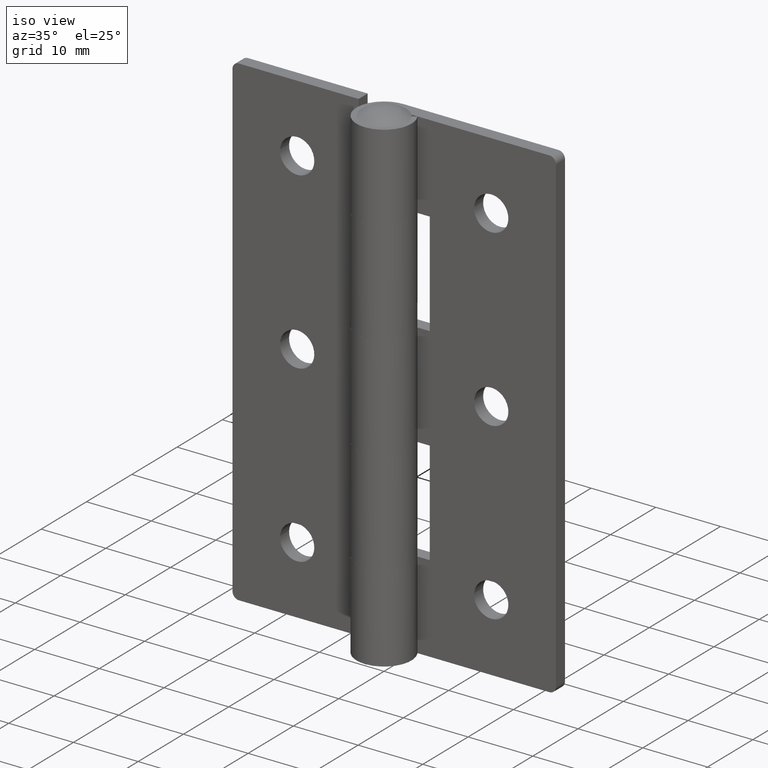
[diagram: clean part render]
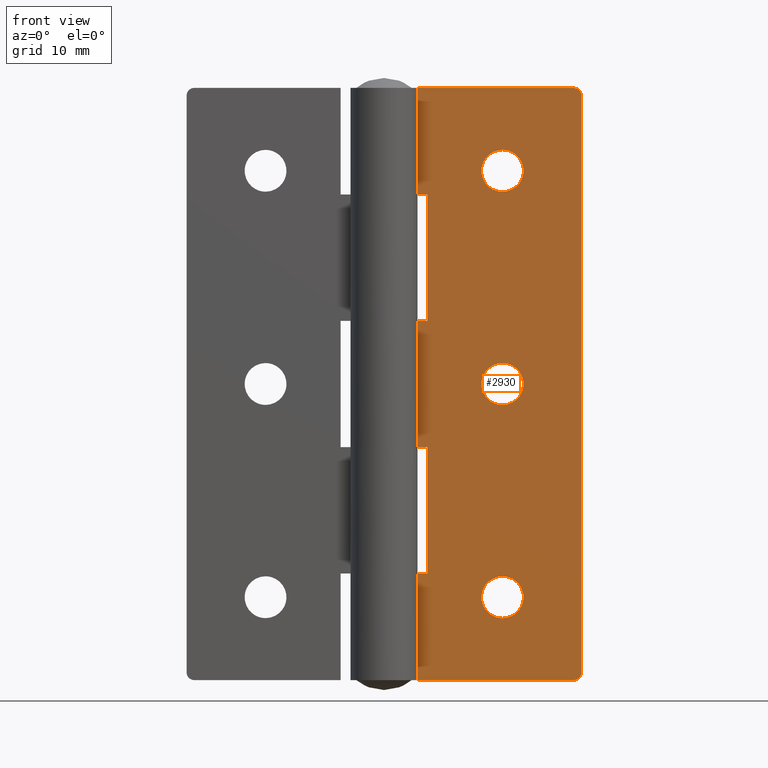
[diagram: tour spotlight — one face highlighted and labeled with its STEP entity id]
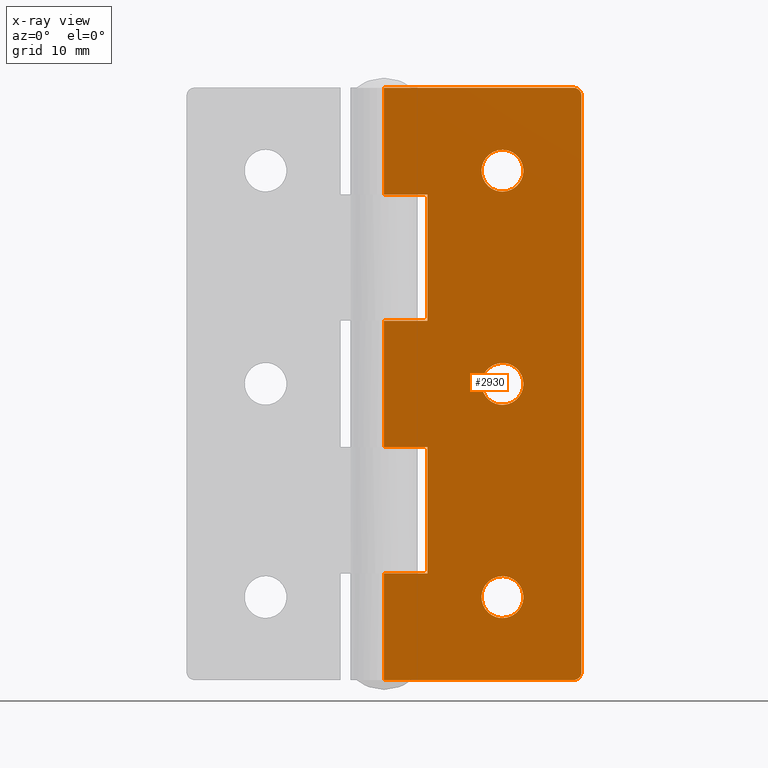
[diagram: x-ray of the same camera — body ghosted, this tour face saturated]
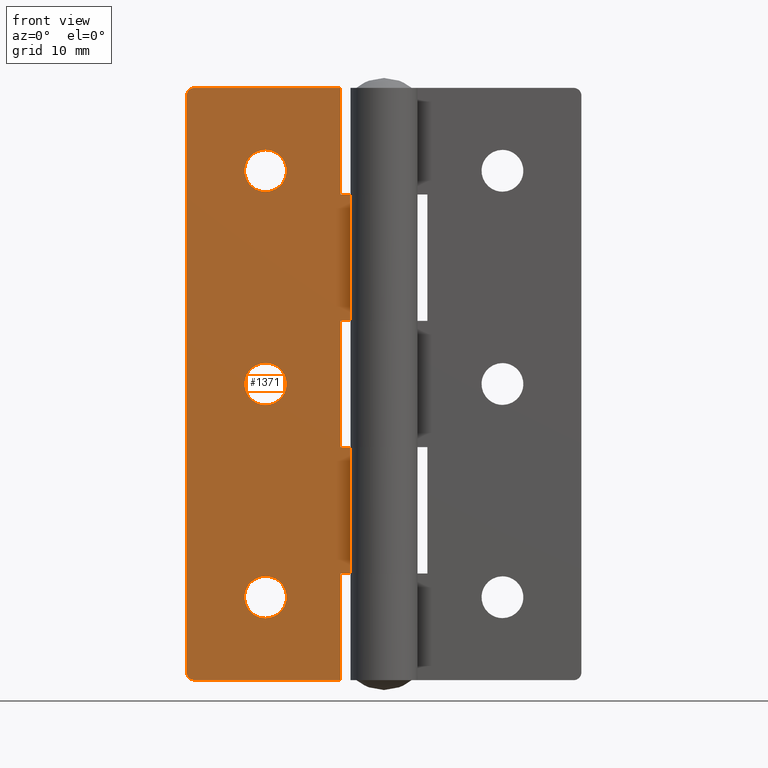
[diagram: tour spotlight — one face highlighted and labeled with its STEP entity id]
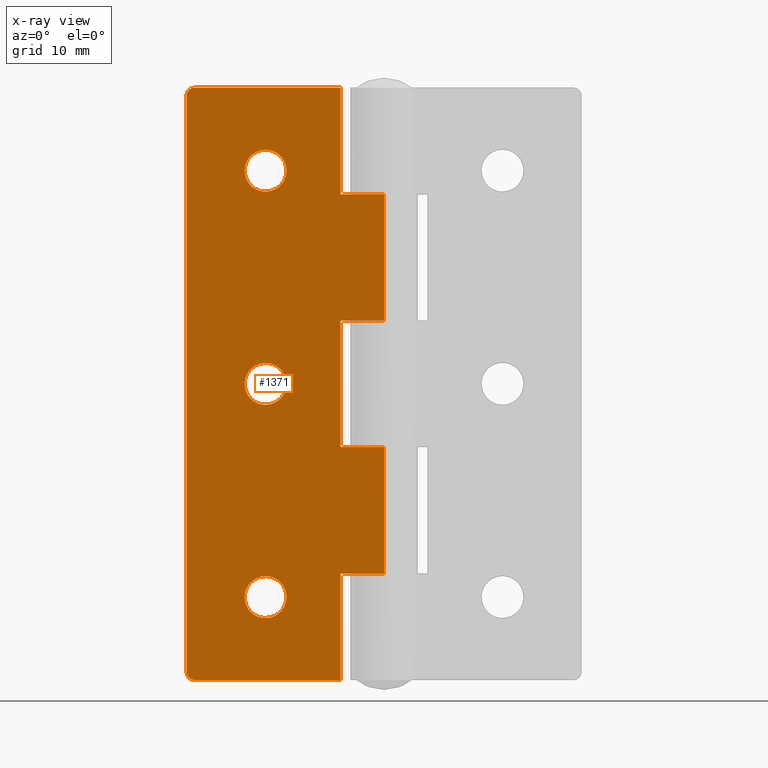
[diagram: x-ray of the same camera — body ghosted, this tour face saturated]
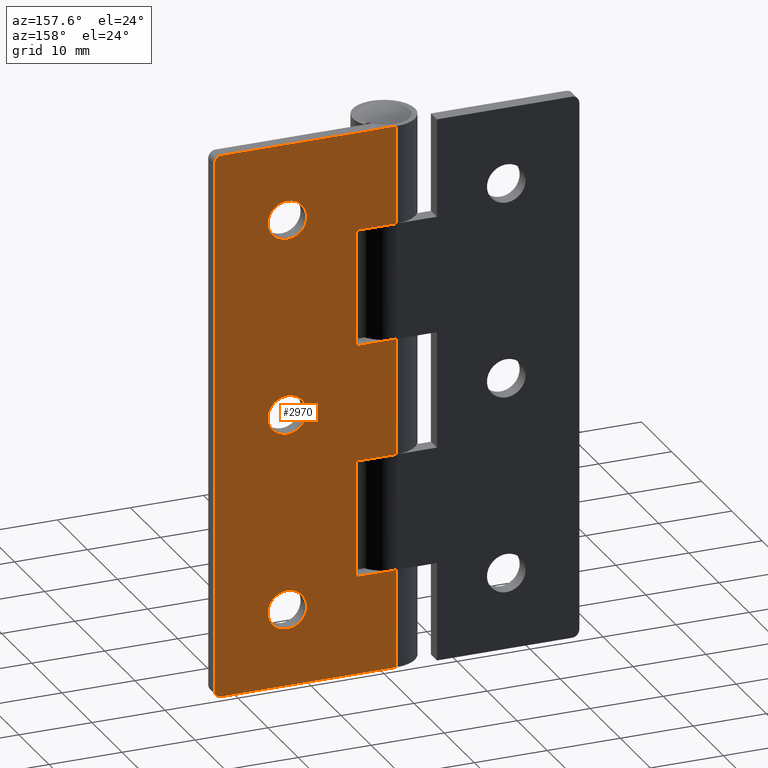
[diagram: tour spotlight — one face highlighted and labeled with its STEP entity id]
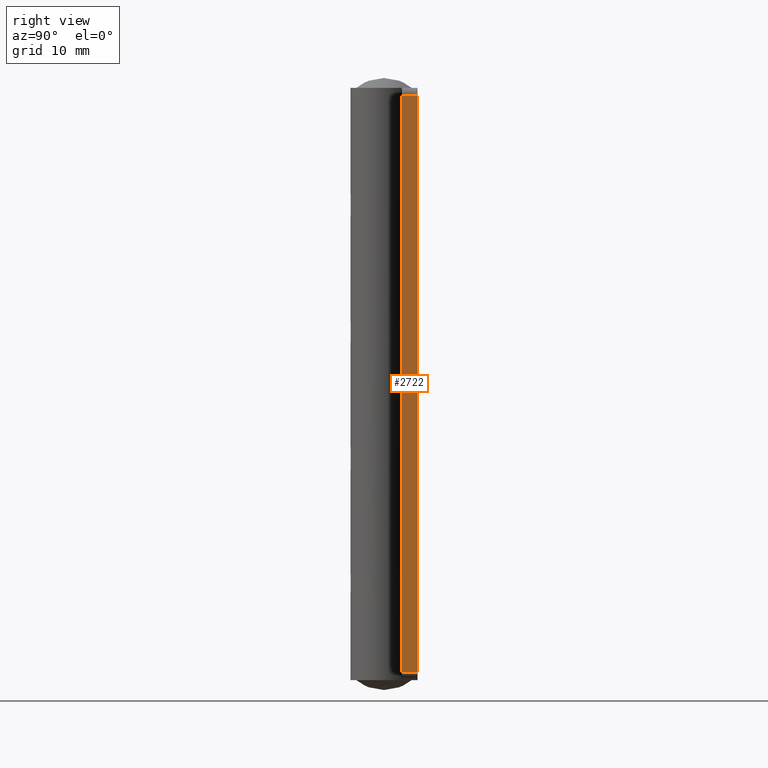
[diagram: tour spotlight — one face highlighted and labeled with its STEP entity id]
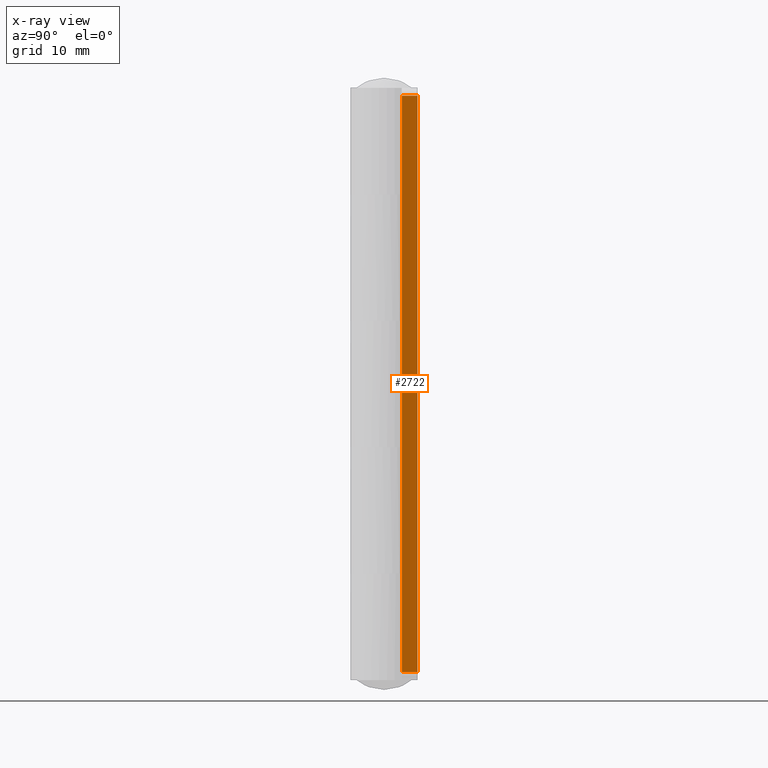
[diagram: x-ray of the same camera — body ghosted, this tour face saturated]
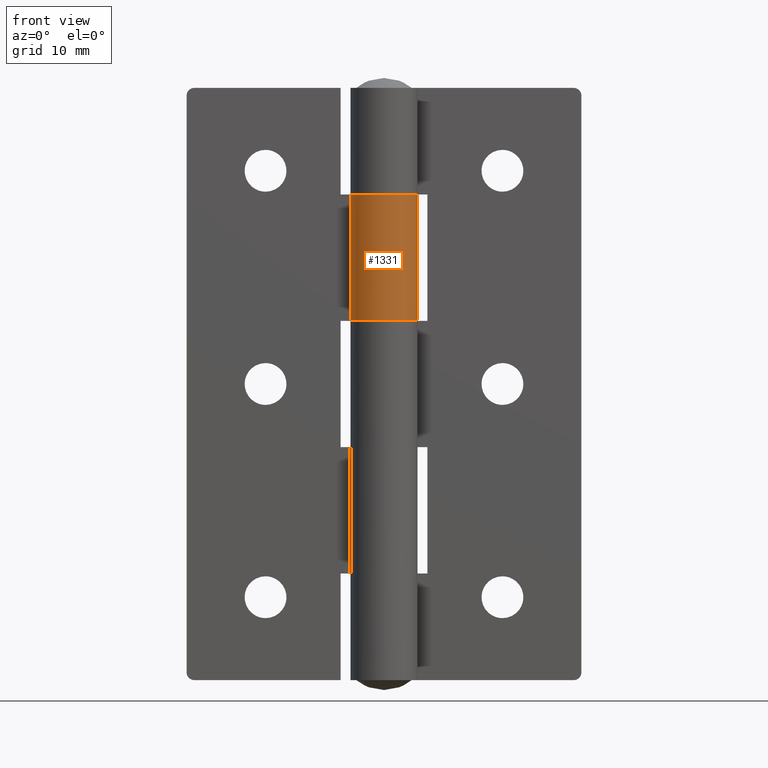
[diagram: tour spotlight — one face highlighted and labeled with its STEP entity id]
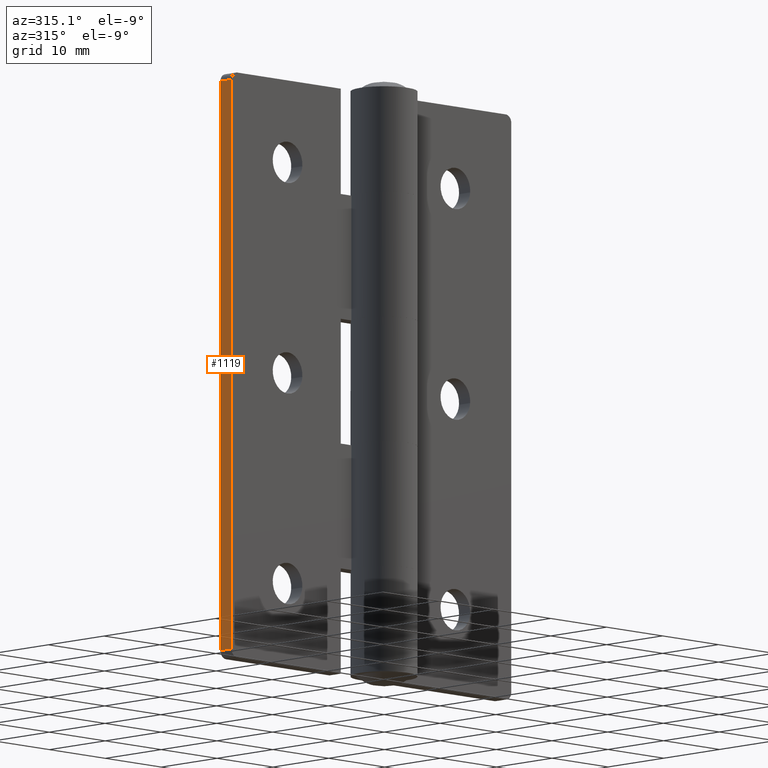
[diagram: tour spotlight — one face highlighted and labeled with its STEP entity id]
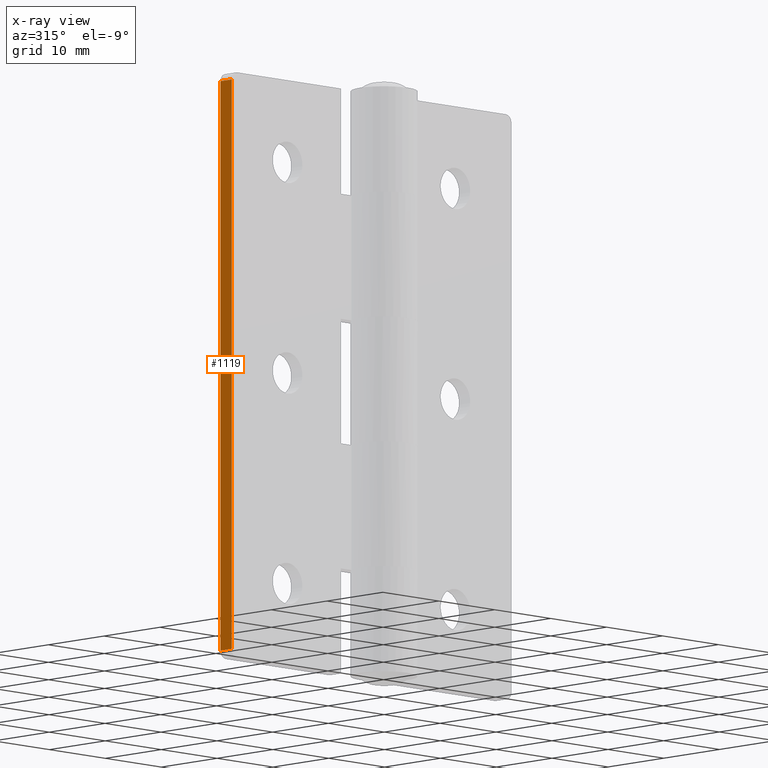
[diagram: x-ray of the same camera — body ghosted, this tour face saturated]
A machine part: a face-by-face anatomy tour. The part has 60 B-rep faces; the first image is the clean iso view, then the 6 largest visible faces are spotlighted one at a time (largest first), each with its STEP entity span.

Face 1 — front view, entity #2930. An x-ray twin of the same camera follows (body ghosted, this face saturated) — the face is partly hidden behind the body. In plain terms, the highlighted face is a freeform B-spline surface patch.
Definition (entity closure, byte-faithful):
#1471=CARTESIAN_POINT('',(15.0,2.249999999999975,67.149985000000001));
#1472=VERTEX_POINT('',#1471);
#1473=CARTESIAN_POINT('',(12.358169065611550,2.249999999999974,64.707901603733958));
#1474=VERTEX_POINT('',#1473);
#1475=CARTESIAN_POINT('',(15.0,2.249999999999975,67.149985000000001));
#1476=CARTESIAN_POINT('',(12.550365197208393,2.249999999999974,67.149984999999987));
#1477=CARTESIAN_POINT('',(12.358169065611550,2.249999999999974,64.707901603733958));
#1485=(BOUNDED_CURVE()B_SPLINE_CURVE(2,(#1475,#1476,#1477),.UNSPECIFIED.,.F.,.U.)B_SPLINE_CURVE_WITH_KNOTS((3,3),(0.0,0.236331300625606),.UNSPECIFIED.)CURVE()GEOMETRIC_REPRESENTATION_ITEM()RATIONAL_B_SPLINE_CURVE((1.0,0.723120658613586,0.969723356156871))REPRESENTATION_ITEM(''));
#1486=EDGE_CURVE('',#1472,#1474,#1485,.T.);
#1527=CARTESIAN_POINT('',(17.641830934388452,2.249999999999975,64.292068396266018));
#1528=VERTEX_POINT('',#1527);
#1534=CARTESIAN_POINT('',(17.641830934388448,2.249999999999975,64.292068396266018));
#1535=CARTESIAN_POINT('',(17.649999999999995,2.249999999999975,64.395866216374245));
#1536=CARTESIAN_POINT('',(17.649999999999999,2.249999999999975,64.499984999999995));
#1537=CARTESIAN_POINT('',(17.649999999999995,2.249999999999974,67.149985000000001));
#1538=CARTESIAN_POINT('',(15.0,2.249999999999975,67.149985000000001));
#1546=(BOUNDED_CURVE()B_SPLINE_CURVE(2,(#1534,#1535,#1536,#1537,#1538),.UNSPECIFIED.,.F.,.U.)B_SPLINE_CURVE_WITH_KNOTS((3,2,3),(0.736331300625606,0.750000000000000,1.0),.UNSPECIFIED.)CURVE()GEOMETRIC_REPRESENTATION_ITEM()RATIONAL_B_SPLINE_CURVE((0.969723356156872,0.983986122572962,1.0,0.707106781186548,1.0))REPRESENTATION_ITEM(''));
#1547=EDGE_CURVE('',#1528,#1472,#1546,.T.);
#1570=CARTESIAN_POINT('',(15.0,2.249999999999975,61.849984999999997));
#1571=VERTEX_POINT('',#1570);
#1572=CARTESIAN_POINT('',(12.358169065611550,2.249999999999974,64.707901603733958));
#1573=CARTESIAN_POINT('',(12.349999999999998,2.249999999999975,64.604103783625746));
#1574=CARTESIAN_POINT('',(12.350000000000000,2.249999999999975,64.499984999999995));
#1575=CARTESIAN_POINT('',(12.350000000000000,2.249999999999974,61.849985000000004));
#1576=CARTESIAN_POINT('',(15.0,2.249999999999975,61.849984999999997));
#1584=(BOUNDED_CURVE()B_SPLINE_CURVE(2,(#1572,#1573,#1574,#1575,#1576),.UNSPECIFIED.,.F.,.U.)B_SPLINE_CURVE_WITH_KNOTS((3,2,3),(0.236331300625606,0.250000000000000,0.500000000000000),.UNSPECIFIED.)CURVE()GEOMETRIC_REPRESENTATION_ITEM()RATIONAL_B_SPLINE_CURVE((0.969723356156871,0.983986122572961,1.0,0.707106781186548,1.0))REPRESENTATION_ITEM(''));
#1585=EDGE_CURVE('',#1474,#1571,#1584,.T.);
#1587=CARTESIAN_POINT('',(15.0,2.249999999999975,61.849984999999997));
#1588=CARTESIAN_POINT('',(17.449634802791628,2.249999999999975,61.849984999999997));
#1589=CARTESIAN_POINT('',(17.641830934388441,2.249999999999975,64.292068396266018));
#1597=(BOUNDED_CURVE()B_SPLINE_CURVE(2,(#1587,#1588,#1589),.UNSPECIFIED.,.F.,.U.)B_SPLINE_CURVE_WITH_KNOTS((3,3),(0.500000000000000,0.736331300625607),.UNSPECIFIED.)CURVE()GEOMETRIC_REPRESENTATION_ITEM()RATIONAL_B_SPLINE_CURVE((1.0,0.723120658613585,0.969723356156874))REPRESENTATION_ITEM(''));
#1598=EDGE_CURVE('',#1571,#1528,#1597,.T.);
#1653=CARTESIAN_POINT('',(15.0,2.249999999999975,40.149999999999999));
#1654=VERTEX_POINT('',#1653);
#1655=CARTESIAN_POINT('',(12.358169065611550,2.249999999999975,37.707916603733963));
#1656=VERTEX_POINT('',#1655);
#1657=CARTESIAN_POINT('',(15.0,2.249999999999975,40.149999999999999));
#1658=CARTESIAN_POINT('',(12.550365197208391,2.249999999999974,40.149999999999999));
#1659=CARTESIAN_POINT('',(12.358169065611555,2.249999999999976,37.707916603733970));
#1667=(BOUNDED_CURVE()B_SPLINE_CURVE(2,(#1657,#1658,#1659),.UNSPECIFIED.,.F.,.U.)B_SPLINE_CURVE_WITH_KNOTS((3,3),(0.0,0.236331300625606),.UNSPECIFIED.)CURVE()GEOMETRIC_REPRESENTATION_ITEM()RATIONAL_B_SPLINE_CURVE((1.0,0.723120658613586,0.969723356156872))REPRESENTATION_ITEM(''));
#1668=EDGE_CURVE('',#1654,#1656,#1667,.T.);
#1709=CARTESIAN_POINT('',(17.641830934388452,2.249999999999975,37.292083396266037));
#1710=VERTEX_POINT('',#1709);
#1716=CARTESIAN_POINT('',(17.641830934388448,2.249999999999974,37.292083396266044));
#1717=CARTESIAN_POINT('',(17.649999999999999,2.249999999999975,37.395881216374249));
#1718=CARTESIAN_POINT('',(17.649999999999999,2.249999999999975,37.500000000000000));
#1719=CARTESIAN_POINT('',(17.649999999999995,2.249999999999974,40.150000000000006));
#1720=CARTESIAN_POINT('',(15.0,2.249999999999975,40.149999999999999));
#1728=(BOUNDED_CURVE()B_SPLINE_CURVE(2,(#1716,#1717,#1718,#1719,#1720),.UNSPECIFIED.,.F.,.U.)B_SPLINE_CURVE_WITH_KNOTS((3,2,3),(0.736331300625606,0.750000000000000,1.0),.UNSPECIFIED.)CURVE()GEOMETRIC_REPRESENTATION_ITEM()RATIONAL_B_SPLINE_CURVE((0.969723356156872,0.983986122572961,1.0,0.707106781186548,1.0))REPRESENTATION_ITEM(''));
#1729=EDGE_CURVE('',#1710,#1654,#1728,.T.);
#1752=CARTESIAN_POINT('',(15.0,2.249999999999975,34.850000000000001));
#1753=VERTEX_POINT('',#1752);
#1754=CARTESIAN_POINT('',(12.358169065611555,2.249999999999975,37.707916603733970));
#1755=CARTESIAN_POINT('',(12.349999999999996,2.249999999999976,37.604118783625758));
#1756=CARTESIAN_POINT('',(12.350000000000000,2.249999999999975,37.500000000000000));
#1757=CARTESIAN_POINT('',(12.350000000000000,2.249999999999974,34.849999999999994));
#1758=CARTESIAN_POINT('',(15.0,2.249999999999975,34.850000000000001));
#1766=(BOUNDED_CURVE()B_SPLINE_CURVE(2,(#1754,#1755,#1756,#1757,#1758),.UNSPECIFIED.,.F.,.U.)B_SPLINE_CURVE_WITH_KNOTS((3,2,3),(0.236331300625606,0.250000000000000,0.500000000000000),.UNSPECIFIED.)CURVE()GEOMETRIC_REPRESENTATION_ITEM()RATIONAL_B_SPLINE_CURVE((0.969723356156872,0.983986122572961,1.0,0.707106781186548,1.0))REPRESENTATION_ITEM(''));
#1767=EDGE_CURVE('',#1656,#1753,#1766,.T.);
#1769=CARTESIAN_POINT('',(15.0,2.249999999999975,34.850000000000001));
#1770=CARTESIAN_POINT('',(17.449634802791593,2.249999999999975,34.850000000000001));
#1771=CARTESIAN_POINT('',(17.641830934388441,2.249999999999975,37.292083396266037));
#1779=(BOUNDED_CURVE()B_SPLINE_CURVE(2,(#1769,#1770,#1771),.UNSPECIFIED.,.F.,.U.)B_SPLINE_CURVE_WITH_KNOTS((3,3),(0.500000000000000,0.736331300625605),.UNSPECIFIED.)CURVE()GEOMETRIC_REPRESENTATION_ITEM()RATIONAL_B_SPLINE_CURVE((1.0,0.723120658613587,0.969723356156869))REPRESENTATION_ITEM(''));
#1780=EDGE_CURVE('',#1753,#1710,#1779,.T.);
#1835=CARTESIAN_POINT('',(15.0,2.249999999999975,13.150000000000000));
#1836=VERTEX_POINT('',#1835);
#1837=CARTESIAN_POINT('',(12.358169065611561,2.249999999999975,10.707916603733970));
#1838=VERTEX_POINT('',#1837);
#1839=CARTESIAN_POINT('',(15.0,2.249999999999975,13.150000000000000));
#1840=CARTESIAN_POINT('',(12.550365197208393,2.249999999999974,13.150000000000000));
#1841=CARTESIAN_POINT('',(12.358169065611559,2.249999999999974,10.707916603733965));
#1849=(BOUNDED_CURVE()B_SPLINE_CURVE(2,(#1839,#1840,#1841),.UNSPECIFIED.,.F.,.U.)B_SPLINE_CURVE_WITH_KNOTS((3,3),(0.0,0.236331300625606),.UNSPECIFIED.)CURVE()GEOMETRIC_REPRESENTATION_ITEM()RATIONAL_B_SPLINE_CURVE((1.0,0.723120658613586,0.969723356156871))REPRESENTATION_ITEM(''));
#1850=EDGE_CURVE('',#1836,#1838,#1849,.T.);
#1891=CARTESIAN_POINT('',(17.641830934388452,2.249999999999975,10.292083396266030));
#1892=VERTEX_POINT('',#1891);
#1898=CARTESIAN_POINT('',(17.641830934388452,2.249999999999975,10.292083396266030));
#1899=CARTESIAN_POINT('',(17.650000000000002,2.249999999999975,10.395881216374240));
#1900=CARTESIAN_POINT('',(17.649999999999999,2.249999999999975,10.500000000000000));
#1901=CARTESIAN_POINT('',(17.649999999999995,2.249999999999974,13.150000000000000));
#1902=CARTESIAN_POINT('',(15.0,2.249999999999975,13.150000000000000));
#1910=(BOUNDED_CURVE()B_SPLINE_CURVE(2,(#1898,#1899,#1900,#1901,#1902),.UNSPECIFIED.,.F.,.U.)B_SPLINE_CURVE_WITH_KNOTS((3,2,3),(0.736331300625606,0.750000000000000,1.0),.UNSPECIFIED.)CURVE()GEOMETRIC_REPRESENTATION_ITEM()RATIONAL_B_SPLINE_CURVE((0.969723356156871,0.983986122572961,1.0,0.707106781186548,1.0))REPRESENTATION_ITEM(''));
#1911=EDGE_CURVE('',#1892,#1836,#1910,.T.);
#1934=CARTESIAN_POINT('',(15.0,2.249999999999975,7.850000000000001));
#1935=VERTEX_POINT('',#1934);
#1936=CARTESIAN_POINT('',(12.358169065611554,2.249999999999975,10.707916603733969));
#1937=CARTESIAN_POINT('',(12.350000000000000,2.249999999999975,10.604118783625761));
#1938=CARTESIAN_POINT('',(12.350000000000000,2.249999999999975,10.500000000000000));
#1939=CARTESIAN_POINT('',(12.350000000000000,2.249999999999974,7.850000000000003));
#1940=CARTESIAN_POINT('',(15.0,2.249999999999975,7.850000000000001));
#1948=(BOUNDED_CURVE()B_SPLINE_CURVE(2,(#1936,#1937,#1938,#1939,#1940),.UNSPECIFIED.,.F.,.U.)B_SPLINE_CURVE_WITH_KNOTS((3,2,3),(0.236331300625606,0.250000000000000,0.500000000000000),.UNSPECIFIED.)CURVE()GEOMETRIC_REPRESENTATION_ITEM()RATIONAL_B_SPLINE_CURVE((0.969723356156871,0.983986122572961,1.0,0.707106781186548,1.0))REPRESENTATION_ITEM(''));
#1949=EDGE_CURVE('',#1838,#1935,#1948,.T.);
#1951=CARTESIAN_POINT('',(15.0,2.249999999999975,7.850000000000001));
#1952=CARTESIAN_POINT('',(17.449634802791593,2.249999999999975,7.850000000000002));
#1953=CARTESIAN_POINT('',(17.641830934388441,2.249999999999975,10.292083396266030));
#1961=(BOUNDED_CURVE()B_SPLINE_CURVE(2,(#1951,#1952,#1953),.UNSPECIFIED.,.F.,.U.)B_SPLINE_CURVE_WITH_KNOTS((3,3),(0.500000000000000,0.736331300625605),.UNSPECIFIED.)CURVE()GEOMETRIC_REPRESENTATION_ITEM()RATIONAL_B_SPLINE_CURVE((1.0,0.723120658613587,0.969723356156869))REPRESENTATION_ITEM(''));
#1962=EDGE_CURVE('',#1935,#1892,#1961,.T.);
#2030=CARTESIAN_POINT('',(24.0,2.250000000000000,74.999985000000009));
#2031=VERTEX_POINT('',#2030);
#2037=CARTESIAN_POINT('',(25.0,2.250000000000000,73.999985000000095));
#2038=VERTEX_POINT('',#2037);
#2039=CARTESIAN_POINT('',(25.0,2.250000000000000,73.999985000000095));
#2040=CARTESIAN_POINT('',(25.0,2.250000000000000,74.999985000000109));
#2041=CARTESIAN_POINT('',(24.0,2.250000000000000,74.999985000000109));
#2049=(BOUNDED_CURVE()B_SPLINE_CURVE(2,(#2039,#2040,#2041),.UNSPECIFIED.,.F.,.U.)CURVE()GEOMETRIC_REPRESENTATION_ITEM()QUASI_UNIFORM_CURVE()RATIONAL_B_SPLINE_CURVE((1.0,0.707106781186548,1.0))REPRESENTATION_ITEM(''));
#2050=EDGE_CURVE('',#2038,#2031,#2049,.T.);
#2091=CARTESIAN_POINT('',(25.0,2.250000000000000,1.0));
#2092=VERTEX_POINT('',#2091);
#2098=CARTESIAN_POINT('',(24.0,2.250000000000000,0.0));
#2099=VERTEX_POINT('',#2098);
#2100=CARTESIAN_POINT('',(24.0,2.250000000000000,0.0));
#2101=CARTESIAN_POINT('',(25.0,2.250000000000000,0.0));
#2102=CARTESIAN_POINT('',(25.0,2.250000000000000,1.0));
#2110=(BOUNDED_CURVE()B_SPLINE_CURVE(2,(#2100,#2101,#2102),.UNSPECIFIED.,.F.,.U.)CURVE()GEOMETRIC_REPRESENTATION_ITEM()QUASI_UNIFORM_CURVE()RATIONAL_B_SPLINE_CURVE((1.0,0.707106781186548,1.0))REPRESENTATION_ITEM(''));
#2111=EDGE_CURVE('',#2099,#2092,#2110,.T.);
#2156=CARTESIAN_POINT('',(5.500000000000000,2.249999999999975,29.499984999999999));
#2157=VERTEX_POINT('',#2156);
#2163=CARTESIAN_POINT('',(0.0,2.250000000000000,29.499984999999949));
#2164=VERTEX_POINT('',#2163);
#2165=CARTESIAN_POINT('',(5.500000000000000,2.249999999999975,29.499984999999999));
#2166=CARTESIAN_POINT('',(0.0,2.250000000000000,29.499984999999949));
#2167=QUASI_UNIFORM_CURVE('',1,(#2165,#2166),.UNSPECIFIED.,.F.,.U.);
#2168=EDGE_CURVE('',#2157,#2164,#2167,.T.);
#2204=CARTESIAN_POINT('',(5.500000000000000,2.249999999999975,13.499985000000001));
#2205=VERTEX_POINT('',#2204);
#2206=CARTESIAN_POINT('',(5.500000000000000,2.249999999999975,13.499985000000001));
#2207=CARTESIAN_POINT('',(5.500000000000000,2.249999999999975,29.499984999999999));
#2208=QUASI_UNIFORM_CURVE('',1,(#2206,#2207),.UNSPECIFIED.,.F.,.U.);
#2209=EDGE_CURVE('',#2205,#2157,#2208,.T.);
#2262=CARTESIAN_POINT('',(0.0,2.250000000000000,13.499985000000040));
#2263=VERTEX_POINT('',#2262);
#2283=CARTESIAN_POINT('',(0.0,2.250000000000000,13.499985000000040));
#2284=CARTESIAN_POINT('',(5.500000000000000,2.249999999999975,13.499985000000001));
#2285=QUASI_UNIFORM_CURVE('',1,(#2283,#2284),.UNSPECIFIED.,.F.,.U.);
#2286=EDGE_CURVE('',#2263,#2205,#2285,.T.);
#2302=CARTESIAN_POINT('',(0.0,2.250000000000000,45.500000000000000));
#2303=VERTEX_POINT('',#2302);
#2304=CARTESIAN_POINT('',(5.500000000000000,2.249999999999975,45.500000000000000));
#2305=VERTEX_POINT('',#2304);
#2306=CARTESIAN_POINT('',(0.0,2.250000000000000,45.500000000000000));
#2307=CARTESIAN_POINT('',(5.500000000000000,2.249999999999975,45.500000000000000));
#2308=QUASI_UNIFORM_CURVE('',1,(#2306,#2307),.UNSPECIFIED.,.F.,.U.);
#2309=EDGE_CURVE('',#2303,#2305,#2308,.T.);
#2380=CARTESIAN_POINT('',(5.500000000000000,2.249999999999975,61.500000000000000));
#2381=VERTEX_POINT('',#2380);
#2382=CARTESIAN_POINT('',(5.500000000000000,2.249999999999975,45.500000000000000));
#2383=CARTESIAN_POINT('',(5.500000000000000,2.249999999999975,61.500000000000000));
#2384=QUASI_UNIFORM_CURVE('',1,(#2382,#2383),.UNSPECIFIED.,.F.,.U.);
#2385=EDGE_CURVE('',#2305,#2381,#2384,.T.);
#2408=CARTESIAN_POINT('',(0.0,2.250000000000000,61.500000000000000));
#2409=VERTEX_POINT('',#2408);
#2410=CARTESIAN_POINT('',(5.500000000000000,2.249999999999975,61.500000000000000));
#2411=CARTESIAN_POINT('',(0.0,2.250000000000000,61.500000000000000));
#2412=QUASI_UNIFORM_CURVE('',1,(#2410,#2411),.UNSPECIFIED.,.F.,.U.);
#2413=EDGE_CURVE('',#2381,#2409,#2412,.T.);
#2486=CARTESIAN_POINT('',(0.0,2.250000000000000,0.0));
#2487=VERTEX_POINT('',#2486);
#2488=CARTESIAN_POINT('',(24.0,2.250000000000000,0.0));
#2489=CARTESIAN_POINT('',(0.0,2.250000000000000,0.0));
#2490=QUASI_UNIFORM_CURVE('',1,(#2488,#2489),.UNSPECIFIED.,.F.,.U.);
#2491=EDGE_CURVE('',#2099,#2487,#2490,.T.);
#2548=CARTESIAN_POINT('',(0.0,2.250000000000000,74.999985000000109));
#2549=VERTEX_POINT('',#2548);
#2550=CARTESIAN_POINT('',(24.0,2.250000000000000,74.999985000000009));
#2551=CARTESIAN_POINT('',(0.0,2.250000000000000,74.999985000000109));
#2552=QUASI_UNIFORM_CURVE('',1,(#2550,#2551),.UNSPECIFIED.,.F.,.U.);
#2553=EDGE_CURVE('',#2031,#2549,#2552,.T.);
#2694=CARTESIAN_POINT('',(0.0,2.250000000000000,45.500000000000000));
#2695=CARTESIAN_POINT('',(0.0,2.250000000000000,29.499984999999949));
#2696=QUASI_UNIFORM_CURVE('',1,(#2694,#2695),.UNSPECIFIED.,.F.,.U.);
#2697=EDGE_CURVE('',#2303,#2164,#2696,.T.);
#2708=CARTESIAN_POINT('',(25.0,2.250000000000000,73.999985000000095));
#2709=CARTESIAN_POINT('',(25.0,2.250000000000000,1.0));
#2710=QUASI_UNIFORM_CURVE('',1,(#2708,#2709),.UNSPECIFIED.,.F.,.U.);
#2711=EDGE_CURVE('',#2038,#2092,#2710,.T.);
#2800=CARTESIAN_POINT('',(0.0,2.250000000000000,74.999985000000109));
#2801=CARTESIAN_POINT('',(0.0,2.250000000000000,61.500000000000000));
#2802=QUASI_UNIFORM_CURVE('',1,(#2800,#2801),.UNSPECIFIED.,.F.,.U.);
#2803=EDGE_CURVE('',#2549,#2409,#2802,.T.);
#2847=CARTESIAN_POINT('',(0.0,2.250000000000000,13.499985000000040));
#2848=CARTESIAN_POINT('',(0.0,2.250000000000000,0.0));
#2849=QUASI_UNIFORM_CURVE('',1,(#2847,#2848),.UNSPECIFIED.,.F.,.U.);
#2850=EDGE_CURVE('',#2263,#2487,#2849,.T.);
#2891=CARTESIAN_POINT('',(-1.248749951545148,2.250000000000000,78.746234105385597));
#2892=CARTESIAN_POINT('',(-1.248749951545148,2.250000000000000,-3.746251117041840));
#2893=CARTESIAN_POINT('',(26.248750622097401,2.250000000000000,78.746234105385597));
#2894=CARTESIAN_POINT('',(26.248750622097401,2.250000000000000,-3.746251117041840));
#2895=B_SPLINE_SURFACE_WITH_KNOTS('',1,1,((#2891,#2893),(#2892,#2894)),.UNSPECIFIED.,.F.,.F.,.U.,(2,2),(2,2),(0.0,82.492485222427433),(0.0,27.497500573642551),.UNSPECIFIED.);
#2896=ORIENTED_EDGE('',*,*,#2491,.F.);
#2897=ORIENTED_EDGE('',*,*,#2111,.T.);
#2898=ORIENTED_EDGE('',*,*,#2711,.F.);
#2899=ORIENTED_EDGE('',*,*,#2050,.T.);
#2900=ORIENTED_EDGE('',*,*,#2553,.T.);
#2901=ORIENTED_EDGE('',*,*,#2803,.T.);
#2902=ORIENTED_EDGE('',*,*,#2413,.F.);
#2903=ORIENTED_EDGE('',*,*,#2385,.F.);
#2904=ORIENTED_EDGE('',*,*,#2309,.F.);
#2905=ORIENTED_EDGE('',*,*,#2697,.T.);
#2906=ORIENTED_EDGE('',*,*,#2168,.F.);
#2907=ORIENTED_EDGE('',*,*,#2209,.F.);
#2908=ORIENTED_EDGE('',*,*,#2286,.F.);
#2909=ORIENTED_EDGE('',*,*,#2850,.T.);
#2910=EDGE_LOOP('',(#2896,#2897,#2898,#2899,#2900,#2901,#2902,#2903,#2904,#2905,#2906,#2907,#2908,#2909));
#2911=FACE_OUTER_BOUND('',#2910,.T.);
#2912=ORIENTED_EDGE('',*,*,#1962,.F.);
#2913=ORIENTED_EDGE('',*,*,#1949,.F.);
#2914=ORIENTED_EDGE('',*,*,#1850,.F.);
#2915=ORIENTED_EDGE('',*,*,#1911,.F.);
#2916=EDGE_LOOP('',(#2912,#2913,#2914,#2915));
#2917=FACE_BOUND('',#2916,.T.);
#2918=ORIENTED_EDGE('',*,*,#1780,.F.);
#2919=ORIENTED_EDGE('',*,*,#1767,.F.);
#2920=ORIENTED_EDGE('',*,*,#1668,.F.);
#2921=ORIENTED_EDGE('',*,*,#1729,.F.);
#2922=EDGE_LOOP('',(#2918,#2919,#2920,#2921));
#2923=FACE_BOUND('',#2922,.T.);
#2924=ORIENTED_EDGE('',*,*,#1598,.F.);
#2925=ORIENTED_EDGE('',*,*,#1585,.F.);
#2926=ORIENTED_EDGE('',*,*,#1486,.F.);
#2927=ORIENTED_EDGE('',*,*,#1547,.F.);
#2928=EDGE_LOOP('',(#2924,#2925,#2926,#2927));
#2929=FACE_BOUND('',#2928,.T.);
#2930=ADVANCED_FACE('',(#2911,#2917,#2923,#2929),#2895,.T.);

Face 2 — front view, entity #1371. An x-ray twin of the same camera follows (body ghosted, this face saturated) — the face is partly hidden behind the body. In plain terms, the highlighted face is a freeform B-spline surface patch.
Definition (entity closure, byte-faithful):
#62=CARTESIAN_POINT('',(-15.0,2.249999999999975,40.149999999999999));
#63=VERTEX_POINT('',#62);
#64=CARTESIAN_POINT('',(-17.641830934388452,2.249999999999975,37.707916603733963));
#65=VERTEX_POINT('',#64);
#66=CARTESIAN_POINT('',(-15.0,2.249999999999975,40.149999999999999));
#67=CARTESIAN_POINT('',(-17.449634802791611,2.249999999999974,40.149999999999999));
#68=CARTESIAN_POINT('',(-17.641830934388452,2.249999999999976,37.707916603733970));
#76=(BOUNDED_CURVE()B_SPLINE_CURVE(2,(#66,#67,#68),.UNSPECIFIED.,.F.,.U.)B_SPLINE_CURVE_WITH_KNOTS((3,3),(0.0,0.236331300625606),.UNSPECIFIED.)CURVE()GEOMETRIC_REPRESENTATION_ITEM()RATIONAL_B_SPLINE_CURVE((1.0,0.723120658613586,0.969723356156872))REPRESENTATION_ITEM(''));
#77=EDGE_CURVE('',#63,#65,#76,.T.);
#118=CARTESIAN_POINT('',(-12.358169065611550,2.249999999999975,37.292083396266037));
#119=VERTEX_POINT('',#118);
#125=CARTESIAN_POINT('',(-12.358169065611552,2.249999999999975,37.292083396266037));
#126=CARTESIAN_POINT('',(-12.349999999999998,2.249999999999975,37.395881216374235));
#127=CARTESIAN_POINT('',(-12.350000000000000,2.249999999999975,37.500000000000000));
#128=CARTESIAN_POINT('',(-12.350000000000000,2.249999999999974,40.150000000000006));
#129=CARTESIAN_POINT('',(-15.0,2.249999999999975,40.149999999999999));
#137=(BOUNDED_CURVE()B_SPLINE_CURVE(2,(#125,#126,#127,#128,#129),.UNSPECIFIED.,.F.,.U.)B_SPLINE_CURVE_WITH_KNOTS((3,2,3),(0.736331300625606,0.750000000000000,1.0),.UNSPECIFIED.)CURVE()GEOMETRIC_REPRESENTATION_ITEM()RATIONAL_B_SPLINE_CURVE((0.969723356156871,0.983986122572961,1.0,0.707106781186548,1.0))REPRESENTATION_ITEM(''));
#138=EDGE_CURVE('',#119,#63,#137,.T.);
#161=CARTESIAN_POINT('',(-15.0,2.249999999999975,34.850000000000001));
#162=VERTEX_POINT('',#161);
#163=CARTESIAN_POINT('',(-17.641830934388445,2.249999999999975,37.707916603733970));
#164=CARTESIAN_POINT('',(-17.649999999999999,2.249999999999975,37.604118783625758));
#165=CARTESIAN_POINT('',(-17.649999999999999,2.249999999999975,37.500000000000000));
#166=CARTESIAN_POINT('',(-17.649999999999995,2.249999999999974,34.849999999999994));
#167=CARTESIAN_POINT('',(-15.0,2.249999999999975,34.850000000000001));
#175=(BOUNDED_CURVE()B_SPLINE_CURVE(2,(#163,#164,#165,#166,#167),.UNSPECIFIED.,.F.,.U.)B_SPLINE_CURVE_WITH_KNOTS((3,2,3),(0.236331300625606,0.250000000000000,0.500000000000000),.UNSPECIFIED.)CURVE()GEOMETRIC_REPRESENTATION_ITEM()RATIONAL_B_SPLINE_CURVE((0.969723356156872,0.983986122572961,1.0,0.707106781186548,1.0))REPRESENTATION_ITEM(''));
#176=EDGE_CURVE('',#65,#162,#175,.T.);
#178=CARTESIAN_POINT('',(-15.0,2.249999999999975,34.850000000000001));
#179=CARTESIAN_POINT('',(-12.550365197208407,2.249999999999975,34.850000000000001));
#180=CARTESIAN_POINT('',(-12.358169065611555,2.249999999999975,37.292083396266037));
#188=(BOUNDED_CURVE()B_SPLINE_CURVE(2,(#178,#179,#180),.UNSPECIFIED.,.F.,.U.)B_SPLINE_CURVE_WITH_KNOTS((3,3),(0.500000000000000,0.736331300625605),.UNSPECIFIED.)CURVE()GEOMETRIC_REPRESENTATION_ITEM()RATIONAL_B_SPLINE_CURVE((1.0,0.723120658613587,0.969723356156869))REPRESENTATION_ITEM(''));
#189=EDGE_CURVE('',#162,#119,#188,.T.);
#244=CARTESIAN_POINT('',(-15.0,2.249999999999975,67.149985000000001));
#245=VERTEX_POINT('',#244);
#246=CARTESIAN_POINT('',(-17.641830934388452,2.249999999999975,64.707901603733973));
#247=VERTEX_POINT('',#246);
#248=CARTESIAN_POINT('',(-15.0,2.249999999999975,67.149985000000001));
#249=CARTESIAN_POINT('',(-17.449634802791593,2.249999999999975,67.149985000000001));
#250=CARTESIAN_POINT('',(-17.641830934388441,2.249999999999975,64.707901603733973));
#258=(BOUNDED_CURVE()B_SPLINE_CURVE(2,(#248,#249,#250),.UNSPECIFIED.,.F.,.U.)B_SPLINE_CURVE_WITH_KNOTS((3,3),(0.0,0.236331300625605),.UNSPECIFIED.)CURVE()GEOMETRIC_REPRESENTATION_ITEM()RATIONAL_B_SPLINE_CURVE((1.0,0.723120658613587,0.969723356156869))REPRESENTATION_ITEM(''));
#259=EDGE_CURVE('',#245,#247,#258,.T.);
#300=CARTESIAN_POINT('',(-12.358169065611561,2.249999999999974,64.292068396266018));
#301=VERTEX_POINT('',#300);
#307=CARTESIAN_POINT('',(-12.358169065611555,2.249999999999975,64.292068396266018));
#308=CARTESIAN_POINT('',(-12.349999999999996,2.249999999999975,64.395866216374245));
#309=CARTESIAN_POINT('',(-12.350000000000000,2.249999999999975,64.499984999999995));
#310=CARTESIAN_POINT('',(-12.350000000000000,2.249999999999974,67.149985000000001));
#311=CARTESIAN_POINT('',(-15.0,2.249999999999975,67.149985000000001));
#319=(BOUNDED_CURVE()B_SPLINE_CURVE(2,(#307,#308,#309,#310,#311),.UNSPECIFIED.,.F.,.U.)B_SPLINE_CURVE_WITH_KNOTS((3,2,3),(0.736331300625606,0.750000000000000,1.0),.UNSPECIFIED.)CURVE()GEOMETRIC_REPRESENTATION_ITEM()RATIONAL_B_SPLINE_CURVE((0.969723356156872,0.983986122572962,1.0,0.707106781186548,1.0))REPRESENTATION_ITEM(''));
#320=EDGE_CURVE('',#301,#245,#319,.T.);
#343=CARTESIAN_POINT('',(-15.0,2.249999999999975,61.849984999999997));
#344=VERTEX_POINT('',#343);
#345=CARTESIAN_POINT('',(-17.641830934388448,2.249999999999976,64.707901603733973));
#346=CARTESIAN_POINT('',(-17.649999999999999,2.249999999999975,64.604103783625746));
#347=CARTESIAN_POINT('',(-17.649999999999999,2.249999999999975,64.499984999999995));
#348=CARTESIAN_POINT('',(-17.649999999999995,2.249999999999974,61.849985000000004));
#349=CARTESIAN_POINT('',(-15.0,2.249999999999975,61.849984999999997));
#357=(BOUNDED_CURVE()B_SPLINE_CURVE(2,(#345,#346,#347,#348,#349),.UNSPECIFIED.,.F.,.U.)B_SPLINE_CURVE_WITH_KNOTS((3,2,3),(0.236331300625605,0.250000000000000,0.500000000000000),.UNSPECIFIED.)CURVE()GEOMETRIC_REPRESENTATION_ITEM()RATIONAL_B_SPLINE_CURVE((0.969723356156870,0.983986122572960,1.0,0.707106781186548,1.0))REPRESENTATION_ITEM(''));
#358=EDGE_CURVE('',#247,#344,#357,.T.);
#360=CARTESIAN_POINT('',(-15.0,2.249999999999975,61.849984999999997));
#361=CARTESIAN_POINT('',(-12.550365197208407,2.249999999999975,61.849984999999990));
#362=CARTESIAN_POINT('',(-12.358169065611555,2.249999999999974,64.292068396266018));
#370=(BOUNDED_CURVE()B_SPLINE_CURVE(2,(#360,#361,#362),.UNSPECIFIED.,.F.,.U.)B_SPLINE_CURVE_WITH_KNOTS((3,3),(0.500000000000000,0.736331300625605),.UNSPECIFIED.)CURVE()GEOMETRIC_REPRESENTATION_ITEM()RATIONAL_B_SPLINE_CURVE((1.0,0.723120658613587,0.969723356156869))REPRESENTATION_ITEM(''));
#371=EDGE_CURVE('',#344,#301,#370,.T.);
#426=CARTESIAN_POINT('',(-15.0,2.249999999999975,13.150000000000000));
#427=VERTEX_POINT('',#426);
#428=CARTESIAN_POINT('',(-17.641830934388452,2.249999999999975,10.707916603733970));
#429=VERTEX_POINT('',#428);
#430=CARTESIAN_POINT('',(-15.0,2.249999999999975,13.150000000000000));
#431=CARTESIAN_POINT('',(-17.449634802791604,2.249999999999974,13.150000000000000));
#432=CARTESIAN_POINT('',(-17.641830934388448,2.249999999999974,10.707916603733965));
#440=(BOUNDED_CURVE()B_SPLINE_CURVE(2,(#430,#431,#432),.UNSPECIFIED.,.F.,.U.)B_SPLINE_CURVE_WITH_KNOTS((3,3),(0.0,0.236331300625606),.UNSPECIFIED.)CURVE()GEOMETRIC_REPRESENTATION_ITEM()RATIONAL_B_SPLINE_CURVE((1.0,0.723120658613586,0.969723356156871))REPRESENTATION_ITEM(''));
#441=EDGE_CURVE('',#427,#429,#440,.T.);
#482=CARTESIAN_POINT('',(-12.358169065611550,2.249999999999975,10.292083396266030));
#483=VERTEX_POINT('',#482);
#489=CARTESIAN_POINT('',(-12.358169065611552,2.249999999999975,10.292083396266030));
#490=CARTESIAN_POINT('',(-12.349999999999998,2.249999999999975,10.395881216374240));
#491=CARTESIAN_POINT('',(-12.350000000000000,2.249999999999975,10.500000000000000));
#492=CARTESIAN_POINT('',(-12.350000000000000,2.249999999999974,13.150000000000000));
#493=CARTESIAN_POINT('',(-15.0,2.249999999999975,13.150000000000000));
#501=(BOUNDED_CURVE()B_SPLINE_CURVE(2,(#489,#490,#491,#492,#493),.UNSPECIFIED.,.F.,.U.)B_SPLINE_CURVE_WITH_KNOTS((3,2,3),(0.736331300625606,0.750000000000000,1.0),.UNSPECIFIED.)CURVE()GEOMETRIC_REPRESENTATION_ITEM()RATIONAL_B_SPLINE_CURVE((0.969723356156871,0.983986122572961,1.0,0.707106781186548,1.0))REPRESENTATION_ITEM(''));
#502=EDGE_CURVE('',#483,#427,#501,.T.);
#525=CARTESIAN_POINT('',(-15.0,2.249999999999975,7.850000000000001));
#526=VERTEX_POINT('',#525);
#527=CARTESIAN_POINT('',(-17.641830934388452,2.249999999999975,10.707916603733967));
#528=CARTESIAN_POINT('',(-17.650000000000002,2.249999999999975,10.604118783625761));
#529=CARTESIAN_POINT('',(-17.649999999999999,2.249999999999975,10.500000000000000));
#530=CARTESIAN_POINT('',(-17.649999999999995,2.249999999999974,7.850000000000003));
#531=CARTESIAN_POINT('',(-15.0,2.249999999999975,7.850000000000001));
#539=(BOUNDED_CURVE()B_SPLINE_CURVE(2,(#527,#528,#529,#530,#531),.UNSPECIFIED.,.F.,.U.)B_SPLINE_CURVE_WITH_KNOTS((3,2,3),(0.236331300625606,0.250000000000000,0.500000000000000),.UNSPECIFIED.)CURVE()GEOMETRIC_REPRESENTATION_ITEM()RATIONAL_B_SPLINE_CURVE((0.969723356156871,0.983986122572961,1.0,0.707106781186548,1.0))REPRESENTATION_ITEM(''));
#540=EDGE_CURVE('',#429,#526,#539,.T.);
#542=CARTESIAN_POINT('',(-15.0,2.249999999999975,7.850000000000001));
#543=CARTESIAN_POINT('',(-12.550365197208407,2.249999999999975,7.850000000000002));
#544=CARTESIAN_POINT('',(-12.358169065611555,2.249999999999975,10.292083396266030));
#552=(BOUNDED_CURVE()B_SPLINE_CURVE(2,(#542,#543,#544),.UNSPECIFIED.,.F.,.U.)B_SPLINE_CURVE_WITH_KNOTS((3,3),(0.500000000000000,0.736331300625605),.UNSPECIFIED.)CURVE()GEOMETRIC_REPRESENTATION_ITEM()RATIONAL_B_SPLINE_CURVE((1.0,0.723120658613587,0.969723356156869))REPRESENTATION_ITEM(''));
#553=EDGE_CURVE('',#526,#483,#552,.T.);
#604=CARTESIAN_POINT('',(-24.0,2.250000000000000,74.999985000000009));
#605=VERTEX_POINT('',#604);
#606=CARTESIAN_POINT('',(-25.0,2.250000000000000,73.999985000000095));
#607=VERTEX_POINT('',#606);
#608=CARTESIAN_POINT('',(-24.0,2.250000000000000,74.999985000000109));
#609=CARTESIAN_POINT('',(-25.0,2.250000000000000,74.999985000000109));
#610=CARTESIAN_POINT('',(-25.0,2.250000000000000,73.999985000000095));
#618=(BOUNDED_CURVE()B_SPLINE_CURVE(2,(#608,#609,#610),.UNSPECIFIED.,.F.,.U.)CURVE()GEOMETRIC_REPRESENTATION_ITEM()QUASI_UNIFORM_CURVE()RATIONAL_B_SPLINE_CURVE((1.0,0.707106781186548,1.0))REPRESENTATION_ITEM(''));
#619=EDGE_CURVE('',#605,#607,#618,.T.);
#665=CARTESIAN_POINT('',(-25.0,2.250000000000000,1.0));
#666=VERTEX_POINT('',#665);
#667=CARTESIAN_POINT('',(-24.0,2.250000000000000,0.0));
#668=VERTEX_POINT('',#667);
#669=CARTESIAN_POINT('',(-25.0,2.250000000000000,1.0));
#670=CARTESIAN_POINT('',(-25.0,2.250000000000000,0.0));
#671=CARTESIAN_POINT('',(-24.0,2.250000000000000,0.0));
#679=(BOUNDED_CURVE()B_SPLINE_CURVE(2,(#669,#670,#671),.UNSPECIFIED.,.F.,.U.)CURVE()GEOMETRIC_REPRESENTATION_ITEM()QUASI_UNIFORM_CURVE()RATIONAL_B_SPLINE_CURVE((1.0,0.707106781186548,1.0))REPRESENTATION_ITEM(''));
#680=EDGE_CURVE('',#666,#668,#679,.T.);
#726=CARTESIAN_POINT('',(-5.499999999999900,2.250000000000000,29.500000000000000));
#727=VERTEX_POINT('',#726);
#733=CARTESIAN_POINT('',(1.377686E-016,2.250000000000000,29.500000000000000));
#734=VERTEX_POINT('',#733);
#735=CARTESIAN_POINT('',(1.377686E-016,2.250000000000000,29.500000000000000));
#736=CARTESIAN_POINT('',(-5.499999999999900,2.250000000000000,29.500000000000000));
#737=QUASI_UNIFORM_CURVE('',1,(#735,#736),.UNSPECIFIED.,.F.,.U.);
#738=EDGE_CURVE('',#734,#727,#737,.T.);
#803=CARTESIAN_POINT('',(-5.499999999999900,2.249999999999975,45.500000000000000));
#804=VERTEX_POINT('',#803);
#810=CARTESIAN_POINT('',(-5.499999999999900,2.250000000000000,29.500000000000000));
#811=CARTESIAN_POINT('',(-5.499999999999900,2.249999999999975,45.500000000000000));
#812=QUASI_UNIFORM_CURVE('',1,(#810,#811),.UNSPECIFIED.,.F.,.U.);
#813=EDGE_CURVE('',#727,#804,#812,.T.);
#853=CARTESIAN_POINT('',(1.377686E-016,2.250000000000000,45.500000000000000));
#854=VERTEX_POINT('',#853);
#874=CARTESIAN_POINT('',(-5.499999999999900,2.249999999999975,45.500000000000000));
#875=CARTESIAN_POINT('',(1.377686E-016,2.250000000000000,45.500000000000000));
#876=QUASI_UNIFORM_CURVE('',1,(#874,#875),.UNSPECIFIED.,.F.,.U.);
#877=EDGE_CURVE('',#804,#854,#876,.T.);
#923=CARTESIAN_POINT('',(1.377686E-016,2.250000000000000,13.499985000000040));
#924=VERTEX_POINT('',#923);
#944=CARTESIAN_POINT('',(-5.499999999999900,2.249999999999975,13.499985000000001));
#945=VERTEX_POINT('',#944);
#946=CARTESIAN_POINT('',(-5.499999999999900,2.249999999999975,13.499985000000001));
#947=CARTESIAN_POINT('',(1.377686E-016,2.250000000000000,13.499985000000040));
#948=QUASI_UNIFORM_CURVE('',1,(#946,#947),.UNSPECIFIED.,.F.,.U.);
#949=EDGE_CURVE('',#945,#924,#948,.T.);
#971=CARTESIAN_POINT('',(-5.499999999999900,2.250000000000000,0.0));
#972=VERTEX_POINT('',#971);
#986=CARTESIAN_POINT('',(-5.499999999999900,2.250000000000000,0.0));
#987=CARTESIAN_POINT('',(-5.499999999999900,2.249999999999975,13.499985000000001));
#988=QUASI_UNIFORM_CURVE('',1,(#986,#987),.UNSPECIFIED.,.F.,.U.);
#989=EDGE_CURVE('',#972,#945,#988,.T.);
#1008=CARTESIAN_POINT('',(-5.499999999999900,2.249999999999975,61.500000000000000));
#1009=VERTEX_POINT('',#1008);
#1015=CARTESIAN_POINT('',(1.377686E-016,2.250000000000000,61.500000000000000));
#1016=VERTEX_POINT('',#1015);
#1017=CARTESIAN_POINT('',(1.377686E-016,2.250000000000000,61.500000000000000));
#1018=CARTESIAN_POINT('',(-5.499999999999900,2.249999999999975,61.500000000000000));
#1019=QUASI_UNIFORM_CURVE('',1,(#1017,#1018),.UNSPECIFIED.,.F.,.U.);
#1020=EDGE_CURVE('',#1016,#1009,#1019,.T.);
#1085=CARTESIAN_POINT('',(-5.499999999999900,2.249999999999975,74.999985000000009));
#1086=VERTEX_POINT('',#1085);
#1092=CARTESIAN_POINT('',(-5.499999999999900,2.249999999999975,61.500000000000000));
#1093=CARTESIAN_POINT('',(-5.499999999999900,2.249999999999975,74.999985000000009));
#1094=QUASI_UNIFORM_CURVE('',1,(#1092,#1093),.UNSPECIFIED.,.F.,.U.);
#1095=EDGE_CURVE('',#1009,#1086,#1094,.T.);
#1111=CARTESIAN_POINT('',(-25.0,2.250000000000000,73.999985000000095));
#1112=CARTESIAN_POINT('',(-25.0,2.250000000000000,1.0));
#1113=QUASI_UNIFORM_CURVE('',1,(#1111,#1112),.UNSPECIFIED.,.F.,.U.);
#1114=EDGE_CURVE('',#607,#666,#1113,.T.);
#1131=CARTESIAN_POINT('',(-5.499999999999900,2.249999999999975,74.999985000000009));
#1132=CARTESIAN_POINT('',(-24.0,2.250000000000000,74.999985000000009));
#1133=QUASI_UNIFORM_CURVE('',1,(#1131,#1132),.UNSPECIFIED.,.F.,.U.);
#1134=EDGE_CURVE('',#1086,#605,#1133,.T.);
#1145=CARTESIAN_POINT('',(-5.499999999999900,2.250000000000000,0.0));
#1146=CARTESIAN_POINT('',(-24.0,2.250000000000000,0.0));
#1147=QUASI_UNIFORM_CURVE('',1,(#1145,#1146),.UNSPECIFIED.,.F.,.U.);
#1148=EDGE_CURVE('',#972,#668,#1147,.T.);
#1183=CARTESIAN_POINT('',(1.377686E-016,2.250000000000000,29.500000000000000));
#1184=CARTESIAN_POINT('',(1.377686E-016,2.250000000000000,13.499985000000040));
#1185=QUASI_UNIFORM_CURVE('',1,(#1183,#1184),.UNSPECIFIED.,.F.,.U.);
#1186=EDGE_CURVE('',#734,#924,#1185,.T.);
#1226=CARTESIAN_POINT('',(1.377686E-016,2.250000000000000,61.500000000000000));
#1227=CARTESIAN_POINT('',(1.377686E-016,2.250000000000000,45.500000000000000));
#1228=QUASI_UNIFORM_CURVE('',1,(#1226,#1227),.UNSPECIFIED.,.F.,.U.);
#1229=EDGE_CURVE('',#1016,#854,#1228,.T.);
#1332=CARTESIAN_POINT('',(-26.248749951545150,2.250000000000000,78.746234105385483));
#1333=CARTESIAN_POINT('',(-26.248749951545150,2.250000000000000,-3.746251117041831));
#1334=CARTESIAN_POINT('',(1.248750622097401,2.250000000000000,78.746234105385483));
#1335=CARTESIAN_POINT('',(1.248750622097401,2.250000000000000,-3.746251117041831));
#1336=B_SPLINE_SURFACE_WITH_KNOTS('',1,1,((#1332,#1334),(#1333,#1335)),.UNSPECIFIED.,.F.,.F.,.U.,(2,2),(2,2),(0.0,82.492485222427320),(0.0,27.497500573642551),.UNSPECIFIED.);
#1337=ORIENTED_EDGE('',*,*,#1114,.T.);
#1338=ORIENTED_EDGE('',*,*,#680,.T.);
#1339=ORIENTED_EDGE('',*,*,#1148,.F.);
#1340=ORIENTED_EDGE('',*,*,#989,.T.);
#1341=ORIENTED_EDGE('',*,*,#949,.T.);
#1342=ORIENTED_EDGE('',*,*,#1186,.F.);
#1343=ORIENTED_EDGE('',*,*,#738,.T.);
#1344=ORIENTED_EDGE('',*,*,#813,.T.);
#1345=ORIENTED_EDGE('',*,*,#877,.T.);
#1346=ORIENTED_EDGE('',*,*,#1229,.F.);
#1347=ORIENTED_EDGE('',*,*,#1020,.T.);
#1348=ORIENTED_EDGE('',*,*,#1095,.T.);
#1349=ORIENTED_EDGE('',*,*,#1134,.T.);
#1350=ORIENTED_EDGE('',*,*,#619,.T.);
#1351=EDGE_LOOP('',(#1337,#1338,#1339,#1340,#1341,#1342,#1343,#1344,#1345,#1346,#1347,#1348,#1349,#1350));
#1352=FACE_OUTER_BOUND('',#1351,.T.);
#1353=ORIENTED_EDGE('',*,*,#553,.F.);
#1354=ORIENTED_EDGE('',*,*,#540,.F.);
#1355=ORIENTED_EDGE('',*,*,#441,.F.);
#1356=ORIENTED_EDGE('',*,*,#502,.F.);
#1357=EDGE_LOOP('',(#1353,#1354,#1355,#1356));
#1358=FACE_BOUND('',#1357,.T.);
#1359=ORIENTED_EDGE('',*,*,#371,.F.);
#1360=ORIENTED_EDGE('',*,*,#358,.F.);
#1361=ORIENTED_EDGE('',*,*,#259,.F.);
#1362=ORIENTED_EDGE('',*,*,#320,.F.);
#1363=EDGE_LOOP('',(#1359,#1360,#1361,#1362));
#1364=FACE_BOUND('',#1363,.T.);
#1365=ORIENTED_EDGE('',*,*,#189,.F.);
#1366=ORIENTED_EDGE('',*,*,#176,.F.);
#1367=ORIENTED_EDGE('',*,*,#77,.F.);
#1368=ORIENTED_EDGE('',*,*,#138,.F.);
#1369=EDGE_LOOP('',(#1365,#1366,#1367,#1368));
#1370=FACE_BOUND('',#1369,.T.);
#1371=ADVANCED_FACE('',(#1352,#1358,#1364,#1370),#1336,.T.);

Face 3 — auxiliary view, entity #2970. In plain terms, the highlighted face is a freeform B-spline surface patch.
Definition (entity closure, byte-faithful):
#1488=CARTESIAN_POINT('',(12.358169065611550,4.250000000000000,64.707901603733973));
#1489=VERTEX_POINT('',#1488);
#1495=CARTESIAN_POINT('',(15.0,4.250000000000000,67.149985000000001));
#1496=VERTEX_POINT('',#1495);
#1497=CARTESIAN_POINT('',(15.0,4.250000000000000,67.149985000000001));
#1498=CARTESIAN_POINT('',(12.550365197208391,4.250000000000001,67.149984999999987));
#1499=CARTESIAN_POINT('',(12.358169065611554,4.250000000000000,64.707901603733973));
#1507=(BOUNDED_CURVE()B_SPLINE_CURVE(2,(#1497,#1498,#1499),.UNSPECIFIED.,.F.,.U.)B_SPLINE_CURVE_WITH_KNOTS((3,3),(0.0,0.236331300625606),.UNSPECIFIED.)CURVE()GEOMETRIC_REPRESENTATION_ITEM()RATIONAL_B_SPLINE_CURVE((1.0,0.723120658613586,0.969723356156872))REPRESENTATION_ITEM(''));
#1508=EDGE_CURVE('',#1496,#1489,#1507,.T.);
#1510=CARTESIAN_POINT('',(17.641830934388452,4.250000000000000,64.292068396266018));
#1511=VERTEX_POINT('',#1510);
#1512=CARTESIAN_POINT('',(17.641830934388448,4.250000000000000,64.292068396266018));
#1513=CARTESIAN_POINT('',(17.650000000000002,4.250000000000001,64.395866216374245));
#1514=CARTESIAN_POINT('',(17.649999999999999,4.250000000000000,64.499984999999995));
#1515=CARTESIAN_POINT('',(17.649999999999995,4.249999999999999,67.149985000000001));
#1516=CARTESIAN_POINT('',(15.0,4.250000000000000,67.149985000000001));
#1524=(BOUNDED_CURVE()B_SPLINE_CURVE(2,(#1512,#1513,#1514,#1515,#1516),.UNSPECIFIED.,.F.,.U.)B_SPLINE_CURVE_WITH_KNOTS((3,2,3),(0.736331300625606,0.750000000000000,1.0),.UNSPECIFIED.)CURVE()GEOMETRIC_REPRESENTATION_ITEM()RATIONAL_B_SPLINE_CURVE((0.969723356156870,0.983986122572961,1.0,0.707106781186548,1.0))REPRESENTATION_ITEM(''));
#1525=EDGE_CURVE('',#1511,#1496,#1524,.T.);
#1601=CARTESIAN_POINT('',(15.0,4.250000000000000,61.849984999999997));
#1602=VERTEX_POINT('',#1601);
#1603=CARTESIAN_POINT('',(15.0,4.250000000000000,61.849984999999997));
#1604=CARTESIAN_POINT('',(17.449634802791593,4.250000000000000,61.849984999999990));
#1605=CARTESIAN_POINT('',(17.641830934388452,4.250000000000000,64.292068396266018));
#1613=(BOUNDED_CURVE()B_SPLINE_CURVE(2,(#1603,#1604,#1605),.UNSPECIFIED.,.F.,.U.)B_SPLINE_CURVE_WITH_KNOTS((3,3),(0.500000000000000,0.736331300625605),.UNSPECIFIED.)CURVE()GEOMETRIC_REPRESENTATION_ITEM()RATIONAL_B_SPLINE_CURVE((1.0,0.723120658613587,0.969723356156869))REPRESENTATION_ITEM(''));
#1614=EDGE_CURVE('',#1602,#1511,#1613,.T.);
#1616=CARTESIAN_POINT('',(12.358169065611554,4.250000000000000,64.707901603733973));
#1617=CARTESIAN_POINT('',(12.350000000000005,4.250000000000000,64.604103783625760));
#1618=CARTESIAN_POINT('',(12.350000000000000,4.250000000000000,64.499984999999995));
#1619=CARTESIAN_POINT('',(12.350000000000000,4.249999999999999,61.849985000000004));
#1620=CARTESIAN_POINT('',(15.0,4.250000000000000,61.849984999999997));
#1628=(BOUNDED_CURVE()B_SPLINE_CURVE(2,(#1616,#1617,#1618,#1619,#1620),.UNSPECIFIED.,.F.,.U.)B_SPLINE_CURVE_WITH_KNOTS((3,2,3),(0.236331300625606,0.250000000000000,0.500000000000000),.UNSPECIFIED.)CURVE()GEOMETRIC_REPRESENTATION_ITEM()RATIONAL_B_SPLINE_CURVE((0.969723356156872,0.983986122572962,1.0,0.707106781186548,1.0))REPRESENTATION_ITEM(''));
#1629=EDGE_CURVE('',#1489,#1602,#1628,.T.);
#1670=CARTESIAN_POINT('',(12.358169065611561,4.250000000000000,37.707916603733963));
#1671=VERTEX_POINT('',#1670);
#1677=CARTESIAN_POINT('',(15.0,4.250000000000000,40.149999999999999));
#1678=VERTEX_POINT('',#1677);
#1679=CARTESIAN_POINT('',(15.0,4.250000000000000,40.149999999999999));
#1680=CARTESIAN_POINT('',(12.550365197208400,4.249999999999999,40.149999999999984));
#1681=CARTESIAN_POINT('',(12.358169065611555,4.250000000000000,37.707916603733963));
#1689=(BOUNDED_CURVE()B_SPLINE_CURVE(2,(#1679,#1680,#1681),.UNSPECIFIED.,.F.,.U.)B_SPLINE_CURVE_WITH_KNOTS((3,3),(0.0,0.236331300625606),.UNSPECIFIED.)CURVE()GEOMETRIC_REPRESENTATION_ITEM()RATIONAL_B_SPLINE_CURVE((1.0,0.723120658613587,0.969723356156871))REPRESENTATION_ITEM(''));
#1690=EDGE_CURVE('',#1678,#1671,#1689,.T.);
#1692=CARTESIAN_POINT('',(17.641830934388452,4.250000000000000,37.292083396266037));
#1693=VERTEX_POINT('',#1692);
#1694=CARTESIAN_POINT('',(17.641830934388448,4.250000000000001,37.292083396266037));
#1695=CARTESIAN_POINT('',(17.649999999999999,4.250000000000001,37.395881216374242));
#1696=CARTESIAN_POINT('',(17.649999999999999,4.250000000000000,37.500000000000000));
#1697=CARTESIAN_POINT('',(17.649999999999995,4.249999999999999,40.150000000000006));
#1698=CARTESIAN_POINT('',(15.0,4.250000000000000,40.149999999999999));
#1706=(BOUNDED_CURVE()B_SPLINE_CURVE(2,(#1694,#1695,#1696,#1697,#1698),.UNSPECIFIED.,.F.,.U.)B_SPLINE_CURVE_WITH_KNOTS((3,2,3),(0.736331300625606,0.750000000000000,1.0),.UNSPECIFIED.)CURVE()GEOMETRIC_REPRESENTATION_ITEM()RATIONAL_B_SPLINE_CURVE((0.969723356156871,0.983986122572961,1.0,0.707106781186548,1.0))REPRESENTATION_ITEM(''));
#1707=EDGE_CURVE('',#1693,#1678,#1706,.T.);
#1783=CARTESIAN_POINT('',(15.0,4.250000000000000,34.850000000000001));
#1784=VERTEX_POINT('',#1783);
#1785=CARTESIAN_POINT('',(15.0,4.250000000000000,34.850000000000001));
#1786=CARTESIAN_POINT('',(17.449634802791593,4.250000000000000,34.850000000000001));
#1787=CARTESIAN_POINT('',(17.641830934388441,4.250000000000000,37.292083396266037));
#1795=(BOUNDED_CURVE()B_SPLINE_CURVE(2,(#1785,#1786,#1787),.UNSPECIFIED.,.F.,.U.)B_SPLINE_CURVE_WITH_KNOTS((3,3),(0.500000000000000,0.736331300625605),.UNSPECIFIED.)CURVE()GEOMETRIC_REPRESENTATION_ITEM()RATIONAL_B_SPLINE_CURVE((1.0,0.723120658613587,0.969723356156869))REPRESENTATION_ITEM(''));
#1796=EDGE_CURVE('',#1784,#1693,#1795,.T.);
#1798=CARTESIAN_POINT('',(12.358169065611555,4.250000000000000,37.707916603733963));
#1799=CARTESIAN_POINT('',(12.350000000000001,4.250000000000000,37.604118783625751));
#1800=CARTESIAN_POINT('',(12.350000000000000,4.250000000000000,37.500000000000000));
#1801=CARTESIAN_POINT('',(12.350000000000000,4.249999999999999,34.849999999999994));
#1802=CARTESIAN_POINT('',(15.0,4.250000000000000,34.850000000000001));
#1810=(BOUNDED_CURVE()B_SPLINE_CURVE(2,(#1798,#1799,#1800,#1801,#1802),.UNSPECIFIED.,.F.,.U.)B_SPLINE_CURVE_WITH_KNOTS((3,2,3),(0.236331300625606,0.250000000000000,0.500000000000000),.UNSPECIFIED.)CURVE()GEOMETRIC_REPRESENTATION_ITEM()RATIONAL_B_SPLINE_CURVE((0.969723356156871,0.983986122572961,1.0,0.707106781186548,1.0))REPRESENTATION_ITEM(''));
#1811=EDGE_CURVE('',#1671,#1784,#1810,.T.);
#1852=CARTESIAN_POINT('',(12.358169065611550,4.250000000000000,10.707916603733970));
#1853=VERTEX_POINT('',#1852);
#1859=CARTESIAN_POINT('',(15.0,4.250000000000000,13.150000000000000));
#1860=VERTEX_POINT('',#1859);
#1861=CARTESIAN_POINT('',(15.0,4.250000000000000,13.150000000000000));
#1862=CARTESIAN_POINT('',(12.550365197208393,4.250000000000001,13.150000000000000));
#1863=CARTESIAN_POINT('',(12.358169065611550,4.250000000000000,10.707916603733965));
#1871=(BOUNDED_CURVE()B_SPLINE_CURVE(2,(#1861,#1862,#1863),.UNSPECIFIED.,.F.,.U.)B_SPLINE_CURVE_WITH_KNOTS((3,3),(0.0,0.236331300625606),.UNSPECIFIED.)CURVE()GEOMETRIC_REPRESENTATION_ITEM()RATIONAL_B_SPLINE_CURVE((1.0,0.723120658613586,0.969723356156871))REPRESENTATION_ITEM(''));
#1872=EDGE_CURVE('',#1860,#1853,#1871,.T.);
#1874=CARTESIAN_POINT('',(17.641830934388452,4.250000000000000,10.292083396266030));
#1875=VERTEX_POINT('',#1874);
#1876=CARTESIAN_POINT('',(17.641830934388452,4.250000000000000,10.292083396266030));
#1877=CARTESIAN_POINT('',(17.650000000000002,4.250000000000000,10.395881216374240));
#1878=CARTESIAN_POINT('',(17.649999999999999,4.250000000000000,10.500000000000000));
#1879=CARTESIAN_POINT('',(17.649999999999995,4.249999999999999,13.150000000000000));
#1880=CARTESIAN_POINT('',(15.0,4.250000000000000,13.150000000000000));
#1888=(BOUNDED_CURVE()B_SPLINE_CURVE(2,(#1876,#1877,#1878,#1879,#1880),.UNSPECIFIED.,.F.,.U.)B_SPLINE_CURVE_WITH_KNOTS((3,2,3),(0.736331300625606,0.750000000000000,1.0),.UNSPECIFIED.)CURVE()GEOMETRIC_REPRESENTATION_ITEM()RATIONAL_B_SPLINE_CURVE((0.969723356156871,0.983986122572961,1.0,0.707106781186548,1.0))REPRESENTATION_ITEM(''));
#1889=EDGE_CURVE('',#1875,#1860,#1888,.T.);
#1965=CARTESIAN_POINT('',(15.0,4.250000000000000,7.850000000000001));
#1966=VERTEX_POINT('',#1965);
#1967=CARTESIAN_POINT('',(15.0,4.250000000000000,7.850000000000001));
#1968=CARTESIAN_POINT('',(17.449634802791593,4.250000000000000,7.850000000000002));
#1969=CARTESIAN_POINT('',(17.641830934388441,4.250000000000000,10.292083396266030));
#1977=(BOUNDED_CURVE()B_SPLINE_CURVE(2,(#1967,#1968,#1969),.UNSPECIFIED.,.F.,.U.)B_SPLINE_CURVE_WITH_KNOTS((3,3),(0.500000000000000,0.736331300625605),.UNSPECIFIED.)CURVE()GEOMETRIC_REPRESENTATION_ITEM()RATIONAL_B_SPLINE_CURVE((1.0,0.723120658613587,0.969723356156869))REPRESENTATION_ITEM(''));
#1978=EDGE_CURVE('',#1966,#1875,#1977,.T.);
#1980=CARTESIAN_POINT('',(12.358169065611552,4.250000000000000,10.707916603733967));
#1981=CARTESIAN_POINT('',(12.349999999999998,4.250000000000000,10.604118783625761));
#1982=CARTESIAN_POINT('',(12.350000000000000,4.250000000000000,10.500000000000000));
#1983=CARTESIAN_POINT('',(12.350000000000000,4.249999999999999,7.850000000000003));
#1984=CARTESIAN_POINT('',(15.0,4.250000000000000,7.850000000000001));
#1992=(BOUNDED_CURVE()B_SPLINE_CURVE(2,(#1980,#1981,#1982,#1983,#1984),.UNSPECIFIED.,.F.,.U.)B_SPLINE_CURVE_WITH_KNOTS((3,2,3),(0.236331300625606,0.250000000000000,0.500000000000000),.UNSPECIFIED.)CURVE()GEOMETRIC_REPRESENTATION_ITEM()RATIONAL_B_SPLINE_CURVE((0.969723356156871,0.983986122572961,1.0,0.707106781186548,1.0))REPRESENTATION_ITEM(''));
#1993=EDGE_CURVE('',#1853,#1966,#1992,.T.);
#2013=CARTESIAN_POINT('',(24.0,4.250000000000000,74.999985000000009));
#2014=VERTEX_POINT('',#2013);
#2015=CARTESIAN_POINT('',(25.0,4.250000000000000,73.999985000000095));
#2016=VERTEX_POINT('',#2015);
#2017=CARTESIAN_POINT('',(24.0,4.250000000000000,74.999985000000109));
#2018=CARTESIAN_POINT('',(25.0,4.249999999999999,74.999985000000109));
#2019=CARTESIAN_POINT('',(25.0,4.250000000000000,73.999985000000095));
#2027=(BOUNDED_CURVE()B_SPLINE_CURVE(2,(#2017,#2018,#2019),.UNSPECIFIED.,.F.,.U.)CURVE()GEOMETRIC_REPRESENTATION_ITEM()QUASI_UNIFORM_CURVE()RATIONAL_B_SPLINE_CURVE((1.0,0.707106781186548,1.0))REPRESENTATION_ITEM(''));
#2028=EDGE_CURVE('',#2014,#2016,#2027,.T.);
#2074=CARTESIAN_POINT('',(25.0,4.250000000000000,1.0));
#2075=VERTEX_POINT('',#2074);
#2076=CARTESIAN_POINT('',(24.0,4.250000000000000,0.0));
#2077=VERTEX_POINT('',#2076);
#2078=CARTESIAN_POINT('',(25.0,4.250000000000000,1.0));
#2079=CARTESIAN_POINT('',(25.0,4.249999999999999,0.0));
#2080=CARTESIAN_POINT('',(24.0,4.250000000000000,0.0));
#2088=(BOUNDED_CURVE()B_SPLINE_CURVE(2,(#2078,#2079,#2080),.UNSPECIFIED.,.F.,.U.)CURVE()GEOMETRIC_REPRESENTATION_ITEM()QUASI_UNIFORM_CURVE()RATIONAL_B_SPLINE_CURVE((1.0,0.707106781186548,1.0))REPRESENTATION_ITEM(''));
#2089=EDGE_CURVE('',#2075,#2077,#2088,.T.);
#2128=CARTESIAN_POINT('',(-7.806864E-016,4.250000000000000,29.499984999999999));
#2129=VERTEX_POINT('',#2128);
#2149=CARTESIAN_POINT('',(5.500000000000000,4.250000000000000,29.499984999999999));
#2150=VERTEX_POINT('',#2149);
#2151=CARTESIAN_POINT('',(5.500000000000000,4.250000000000000,29.499984999999999));
#2152=CARTESIAN_POINT('',(-7.806864E-016,4.250000000000000,29.499984999999999));
#2153=QUASI_UNIFORM_CURVE('',1,(#2151,#2152),.UNSPECIFIED.,.F.,.U.);
#2154=EDGE_CURVE('',#2150,#2129,#2153,.T.);
#2212=CARTESIAN_POINT('',(5.500000000000000,4.250000000000000,13.499985000000001));
#2213=VERTEX_POINT('',#2212);
#2214=CARTESIAN_POINT('',(5.500000000000000,4.250000000000000,13.499985000000001));
#2215=CARTESIAN_POINT('',(5.500000000000000,4.250000000000000,29.499984999999999));
#2216=QUASI_UNIFORM_CURVE('',1,(#2214,#2215),.UNSPECIFIED.,.F.,.U.);
#2217=EDGE_CURVE('',#2213,#2150,#2216,.T.);
#2232=CARTESIAN_POINT('',(-7.806864E-016,4.250000000000000,13.499985000000001));
#2233=VERTEX_POINT('',#2232);
#2289=CARTESIAN_POINT('',(-7.806864E-016,4.250000000000000,13.499985000000001));
#2290=CARTESIAN_POINT('',(5.500000000000000,4.250000000000000,13.499985000000001));
#2291=QUASI_UNIFORM_CURVE('',1,(#2289,#2290),.UNSPECIFIED.,.F.,.U.);
#2292=EDGE_CURVE('',#2233,#2213,#2291,.T.);
#2311=CARTESIAN_POINT('',(5.500000000000000,4.250000000000000,45.500000000000000));
#2312=VERTEX_POINT('',#2311);
#2318=CARTESIAN_POINT('',(-7.806866E-016,4.250000000000000,45.500000000000000));
#2319=VERTEX_POINT('',#2318);
#2320=CARTESIAN_POINT('',(5.500000000000000,4.250000000000000,45.500000000000000));
#2321=CARTESIAN_POINT('',(-7.806866E-016,4.250000000000000,45.500000000000000));
#2322=QUASI_UNIFORM_CURVE('',1,(#2320,#2321),.UNSPECIFIED.,.F.,.U.);
#2323=EDGE_CURVE('',#2312,#2319,#2322,.T.);
#2387=CARTESIAN_POINT('',(5.500000000000000,4.250000000000000,61.500000000000000));
#2388=VERTEX_POINT('',#2387);
#2394=CARTESIAN_POINT('',(5.500000000000000,4.250000000000000,61.500000000000000));
#2395=CARTESIAN_POINT('',(5.500000000000000,4.250000000000000,45.500000000000000));
#2396=QUASI_UNIFORM_CURVE('',1,(#2394,#2395),.UNSPECIFIED.,.F.,.U.);
#2397=EDGE_CURVE('',#2388,#2312,#2396,.T.);
#2443=CARTESIAN_POINT('',(0.0,4.250000000000000,61.500000000000000));
#2444=VERTEX_POINT('',#2443);
#2464=CARTESIAN_POINT('',(0.0,4.250000000000000,61.500000000000000));
#2465=CARTESIAN_POINT('',(5.500000000000000,4.250000000000000,61.500000000000000));
#2466=QUASI_UNIFORM_CURVE('',1,(#2464,#2465),.UNSPECIFIED.,.F.,.U.);
#2467=EDGE_CURVE('',#2444,#2388,#2466,.T.);
#2478=CARTESIAN_POINT('',(-7.806866E-016,4.250000000000000,0.0));
#2479=VERTEX_POINT('',#2478);
#2480=CARTESIAN_POINT('',(-7.806866E-016,4.250000000000000,0.0));
#2481=CARTESIAN_POINT('',(24.0,4.250000000000000,0.0));
#2482=QUASI_UNIFORM_CURVE('',1,(#2480,#2481),.UNSPECIFIED.,.F.,.U.);
#2483=EDGE_CURVE('',#2479,#2077,#2482,.T.);
#2556=CARTESIAN_POINT('',(-7.806866E-016,4.250000000000000,74.999985000000109));
#2557=VERTEX_POINT('',#2556);
#2558=CARTESIAN_POINT('',(-7.806866E-016,4.250000000000000,74.999985000000109));
#2559=CARTESIAN_POINT('',(24.0,4.250000000000000,74.999985000000009));
#2560=QUASI_UNIFORM_CURVE('',1,(#2558,#2559),.UNSPECIFIED.,.F.,.U.);
#2561=EDGE_CURVE('',#2557,#2014,#2560,.T.);
#2635=CARTESIAN_POINT('',(-7.806866E-016,4.250000000000000,74.999985000000109));
#2636=CARTESIAN_POINT('',(0.0,4.250000000000000,61.500000000000000));
#2637=QUASI_UNIFORM_CURVE('',1,(#2635,#2636),.UNSPECIFIED.,.F.,.U.);
#2638=EDGE_CURVE('',#2557,#2444,#2637,.T.);
#2714=CARTESIAN_POINT('',(25.0,4.250000000000000,73.999985000000095));
#2715=CARTESIAN_POINT('',(25.0,4.250000000000000,1.0));
#2716=QUASI_UNIFORM_CURVE('',1,(#2714,#2715),.UNSPECIFIED.,.F.,.U.);
#2717=EDGE_CURVE('',#2016,#2075,#2716,.T.);
#2751=CARTESIAN_POINT('',(-7.806864E-016,4.250000000000000,13.499985000000001));
#2752=CARTESIAN_POINT('',(-7.806866E-016,4.250000000000000,0.0));
#2753=QUASI_UNIFORM_CURVE('',1,(#2751,#2752),.UNSPECIFIED.,.F.,.U.);
#2754=EDGE_CURVE('',#2233,#2479,#2753,.T.);
#2883=CARTESIAN_POINT('',(-7.806866E-016,4.250000000000000,45.500000000000000));
#2884=CARTESIAN_POINT('',(-7.806864E-016,4.250000000000000,29.499984999999999));
#2885=QUASI_UNIFORM_CURVE('',1,(#2883,#2884),.UNSPECIFIED.,.F.,.U.);
#2886=EDGE_CURVE('',#2319,#2129,#2885,.T.);
#2931=CARTESIAN_POINT('',(-1.248749951545148,4.250000000000000,-3.746249105385483));
#2932=CARTESIAN_POINT('',(-1.248749951545148,4.250000000000000,78.746236117041960));
#2933=CARTESIAN_POINT('',(26.248750622097401,4.250000000000000,-3.746249105385483));
#2934=CARTESIAN_POINT('',(26.248750622097401,4.250000000000000,78.746236117041960));
#2935=B_SPLINE_SURFACE_WITH_KNOTS('',1,1,((#2931,#2933),(#2932,#2934)),.UNSPECIFIED.,.F.,.F.,.U.,(2,2),(2,2),(0.0,82.492485222427447),(0.0,27.497500573642551),.UNSPECIFIED.);
#2936=ORIENTED_EDGE('',*,*,#2717,.T.);
#2937=ORIENTED_EDGE('',*,*,#2089,.T.);
#2938=ORIENTED_EDGE('',*,*,#2483,.F.);
#2939=ORIENTED_EDGE('',*,*,#2754,.F.);
#2940=ORIENTED_EDGE('',*,*,#2292,.T.);
#2941=ORIENTED_EDGE('',*,*,#2217,.T.);
#2942=ORIENTED_EDGE('',*,*,#2154,.T.);
#2943=ORIENTED_EDGE('',*,*,#2886,.F.);
#2944=ORIENTED_EDGE('',*,*,#2323,.F.);
#2945=ORIENTED_EDGE('',*,*,#2397,.F.);
#2946=ORIENTED_EDGE('',*,*,#2467,.F.);
#2947=ORIENTED_EDGE('',*,*,#2638,.F.);
#2948=ORIENTED_EDGE('',*,*,#2561,.T.);
#2949=ORIENTED_EDGE('',*,*,#2028,.T.);
#2950=EDGE_LOOP('',(#2936,#2937,#2938,#2939,#2940,#2941,#2942,#2943,#2944,#2945,#2946,#2947,#2948,#2949));
#2951=FACE_OUTER_BOUND('',#2950,.T.);
#2952=ORIENTED_EDGE('',*,*,#1978,.T.);
#2953=ORIENTED_EDGE('',*,*,#1889,.T.);
#2954=ORIENTED_EDGE('',*,*,#1872,.T.);
#2955=ORIENTED_EDGE('',*,*,#1993,.T.);
#2956=EDGE_LOOP('',(#2952,#2953,#2954,#2955));
#2957=FACE_BOUND('',#2956,.T.);
#2958=ORIENTED_EDGE('',*,*,#1796,.T.);
#2959=ORIENTED_EDGE('',*,*,#1707,.T.);
#2960=ORIENTED_EDGE('',*,*,#1690,.T.);
#2961=ORIENTED_EDGE('',*,*,#1811,.T.);
#2962=EDGE_LOOP('',(#2958,#2959,#2960,#2961));
#2963=FACE_BOUND('',#2962,.T.);
#2964=ORIENTED_EDGE('',*,*,#1614,.T.);
#2965=ORIENTED_EDGE('',*,*,#1525,.T.);
#2966=ORIENTED_EDGE('',*,*,#1508,.T.);
#2967=ORIENTED_EDGE('',*,*,#1629,.T.);
#2968=EDGE_LOOP('',(#2964,#2965,#2966,#2967));
#2969=FACE_BOUND('',#2968,.T.);
#2970=ADVANCED_FACE('',(#2951,#2957,#2963,#2969),#2935,.T.);

Face 4 — right view, entity #2722. An x-ray twin of the same camera follows (body ghosted, this face saturated) — the face is partly hidden behind the body. In plain terms, the highlighted face is a freeform B-spline surface patch.
Definition (entity closure, byte-faithful):
#2015=CARTESIAN_POINT('',(25.0,4.250000000000000,73.999985000000095));
#2016=VERTEX_POINT('',#2015);
#2037=CARTESIAN_POINT('',(25.0,2.250000000000000,73.999985000000095));
#2038=VERTEX_POINT('',#2037);
#2052=CARTESIAN_POINT('',(25.0,4.250000000000000,73.999985000000095));
#2053=CARTESIAN_POINT('',(25.0,2.250000000000000,73.999985000000095));
#2054=QUASI_UNIFORM_CURVE('',1,(#2052,#2053),.UNSPECIFIED.,.F.,.U.);
#2055=EDGE_CURVE('',#2016,#2038,#2054,.T.);
#2074=CARTESIAN_POINT('',(25.0,4.250000000000000,1.0));
#2075=VERTEX_POINT('',#2074);
#2091=CARTESIAN_POINT('',(25.0,2.250000000000000,1.0));
#2092=VERTEX_POINT('',#2091);
#2093=CARTESIAN_POINT('',(25.0,2.250000000000000,1.0));
#2094=CARTESIAN_POINT('',(25.0,4.250000000000000,1.0));
#2095=QUASI_UNIFORM_CURVE('',1,(#2093,#2094),.UNSPECIFIED.,.F.,.U.);
#2096=EDGE_CURVE('',#2092,#2075,#2095,.T.);
#2703=CARTESIAN_POINT('',(25.0,2.150100003876388,77.646334109261971));
#2704=CARTESIAN_POINT('',(25.0,2.150100003876388,-2.646351067274046));
#2705=CARTESIAN_POINT('',(25.0,4.349900049767792,77.646334109261971));
#2706=CARTESIAN_POINT('',(25.0,4.349900049767792,-2.646351067274046));
#2707=B_SPLINE_SURFACE_WITH_KNOTS('',1,1,((#2703,#2705),(#2704,#2706)),.UNSPECIFIED.,.F.,.F.,.U.,(2,2),(2,2),(0.0,80.292685176536011),(0.0,2.199800045891405),.UNSPECIFIED.);
#2708=CARTESIAN_POINT('',(25.0,2.250000000000000,73.999985000000095));
#2709=CARTESIAN_POINT('',(25.0,2.250000000000000,1.0));
#2710=QUASI_UNIFORM_CURVE('',1,(#2708,#2709),.UNSPECIFIED.,.F.,.U.);
#2711=EDGE_CURVE('',#2038,#2092,#2710,.T.);
#2712=ORIENTED_EDGE('',*,*,#2711,.T.);
#2713=ORIENTED_EDGE('',*,*,#2096,.T.);
#2714=CARTESIAN_POINT('',(25.0,4.250000000000000,73.999985000000095));
#2715=CARTESIAN_POINT('',(25.0,4.250000000000000,1.0));
#2716=QUASI_UNIFORM_CURVE('',1,(#2714,#2715),.UNSPECIFIED.,.F.,.U.);
#2717=EDGE_CURVE('',#2016,#2075,#2716,.T.);
#2718=ORIENTED_EDGE('',*,*,#2717,.F.);
#2719=ORIENTED_EDGE('',*,*,#2055,.T.);
#2720=EDGE_LOOP('',(#2712,#2713,#2718,#2719));
#2721=FACE_OUTER_BOUND('',#2720,.T.);
#2722=ADVANCED_FACE('',(#2721),#2707,.T.);

Face 5 — front view, entity #1331. In plain terms, the highlighted face is a freeform B-spline surface patch.
Definition (entity closure, byte-faithful):
#823=CARTESIAN_POINT('',(-3.636275567115340,2.200000000000000,45.500000000000000));
#824=VERTEX_POINT('',#823);
#825=CARTESIAN_POINT('',(0.0,4.250000000000000,45.500000000000000));
#826=VERTEX_POINT('',#825);
#827=CARTESIAN_POINT('',(-3.636275567115340,2.200000000000003,45.500000000000000));
#828=CARTESIAN_POINT('',(-5.333369332345939,-0.605045724368995,45.500000000000000));
#829=CARTESIAN_POINT('',(-3.051051400271963,-2.958645864732462,45.500000000000000));
#830=CARTESIAN_POINT('',(-0.768733468197987,-5.312246005095930,45.500000000000000));
#831=CARTESIAN_POINT('',(2.087163146474181,-3.702195294686653,45.500000000000000));
#832=CARTESIAN_POINT('',(4.943059761146343,-2.092144584277380,45.500000000000000));
#833=CARTESIAN_POINT('',(4.110768176534545,1.078927707861306,45.500000000000000));
#834=CARTESIAN_POINT('',(3.278476591922745,4.250000000000001,45.500000000000000));
#835=CARTESIAN_POINT('',(0.0,4.250000000000000,45.500000000000000));
#843=(BOUNDED_CURVE()B_SPLINE_CURVE(2,(#827,#828,#829,#830,#831,#832,#833,#834,#835),.UNSPECIFIED.,.F.,.U.)B_SPLINE_CURVE_WITH_KNOTS((3,2,2,2,3),(0.0,0.250000000000000,0.500000000000000,0.750000000000000,1.0),.UNSPECIFIED.)CURVE()GEOMETRIC_REPRESENTATION_ITEM()RATIONAL_B_SPLINE_CURVE((1.0,0.791790800346338,1.0,0.791790800346338,1.0,0.791790800346338,1.0,0.791790800346338,1.0))REPRESENTATION_ITEM(''));
#844=EDGE_CURVE('',#824,#826,#843,.T.);
#1001=CARTESIAN_POINT('',(0.0,4.250000000000000,61.500000000000000));
#1002=VERTEX_POINT('',#1001);
#1043=CARTESIAN_POINT('',(-3.636275567115340,2.200000000000000,61.500000000000000));
#1044=VERTEX_POINT('',#1043);
#1050=CARTESIAN_POINT('',(0.0,4.250000000000000,61.500000000000000));
#1051=CARTESIAN_POINT('',(3.278476591922742,4.250000000000001,61.499999999999993));
#1052=CARTESIAN_POINT('',(4.110768176534545,1.078927707861309,61.500000000000000));
#1053=CARTESIAN_POINT('',(4.943059761146345,-2.092144584277381,61.499999999999993));
#1054=CARTESIAN_POINT('',(2.087163146474180,-3.702195294686654,61.500000000000000));
#1055=CARTESIAN_POINT('',(-0.768733468197986,-5.312246005095928,61.499999999999993));
#1056=CARTESIAN_POINT('',(-3.051051400271961,-2.958645864732464,61.500000000000000));
#1057=CARTESIAN_POINT('',(-5.333369332345939,-0.605045724368997,61.499999999999993));
#1058=CARTESIAN_POINT('',(-3.636275567115342,2.200000000000001,61.500000000000000));
#1066=(BOUNDED_CURVE()B_SPLINE_CURVE(2,(#1050,#1051,#1052,#1053,#1054,#1055,#1056,#1057,#1058),.UNSPECIFIED.,.F.,.U.)B_SPLINE_CURVE_WITH_KNOTS((3,2,2,2,3),(0.0,0.250000000000000,0.500000000000000,0.750000000000000,1.0),.UNSPECIFIED.)CURVE()GEOMETRIC_REPRESENTATION_ITEM()RATIONAL_B_SPLINE_CURVE((1.0,0.791790800346338,1.0,0.791790800346338,1.0,0.791790800346338,1.0,0.791790800346338,1.0))REPRESENTATION_ITEM(''));
#1067=EDGE_CURVE('',#1002,#1044,#1066,.T.);
#1257=CARTESIAN_POINT('',(-3.636275567115340,2.200000000000000,61.500000000000000));
#1258=CARTESIAN_POINT('',(-3.636275567115340,2.200000000000000,45.500000000000000));
#1259=QUASI_UNIFORM_CURVE('',1,(#1257,#1258),.UNSPECIFIED.,.F.,.U.);
#1260=EDGE_CURVE('',#1044,#824,#1259,.T.);
#1299=CARTESIAN_POINT('',(-3.544014743785464,2.345732187576247,61.899999999999999));
#1300=CARTESIAN_POINT('',(-3.544014743785464,2.345732187576247,45.089999999999989));
#1301=CARTESIAN_POINT('',(-6.475460565224038,-2.083199327628493,61.899999999999999));
#1302=CARTESIAN_POINT('',(-6.475460565224038,-2.083199327628493,45.089999999999989));
#1303=CARTESIAN_POINT('',(-1.511515737713226,-3.972130432733199,61.899999999999999));
#1304=CARTESIAN_POINT('',(-1.511515737713226,-3.972130432733199,45.089999999999989));
#1305=CARTESIAN_POINT('',(3.452429089797587,-5.861061537837907,61.899999999999999));
#1306=CARTESIAN_POINT('',(3.452429089797587,-5.861061537837907,45.089999999999989));
#1307=CARTESIAN_POINT('',(4.206900926593703,-0.603725594806974,61.899999999999999));
#1308=CARTESIAN_POINT('',(4.206900926593703,-0.603725594806974,45.089999999999989));
#1309=CARTESIAN_POINT('',(4.961372763389819,4.653610348223958,61.899999999999999));
#1310=CARTESIAN_POINT('',(4.961372763389819,4.653610348223958,45.089999999999989));
#1311=CARTESIAN_POINT('',(-0.333451156843339,4.236898668365793,61.899999999999999));
#1312=CARTESIAN_POINT('',(-0.333451156843339,4.236898668365793,45.089999999999989));
#1320=(BOUNDED_SURFACE()B_SPLINE_SURFACE(1,2,((#1299,#1301,#1303,#1305,#1307,#1309,#1311),(#1300,#1302,#1304,#1306,#1308,#1310,#1312)),.UNSPECIFIED.,.F.,.F.,.U.)B_SPLINE_SURFACE_WITH_KNOTS((2,2),(3,2,2,3),(0.0,16.810000000000009),(0.0,8.169369942419097,16.338739884838191,24.508109827257289),.UNSPECIFIED.)GEOMETRIC_REPRESENTATION_ITEM()RATIONAL_B_SPLINE_SURFACE(((1.0,0.624788514543960,1.0,0.624788514543960,1.0,0.624788514543960,1.0),(1.0,0.624788514543960,1.0,0.624788514543960,1.0,0.624788514543960,1.0)))REPRESENTATION_ITEM('')SURFACE());
#1321=ORIENTED_EDGE('',*,*,#844,.T.);
#1322=CARTESIAN_POINT('',(0.0,4.250000000000000,61.500000000000000));
#1323=CARTESIAN_POINT('',(0.0,4.250000000000000,45.500000000000000));
#1324=QUASI_UNIFORM_CURVE('',1,(#1322,#1323),.UNSPECIFIED.,.F.,.U.);
#1325=EDGE_CURVE('',#1002,#826,#1324,.T.);
#1326=ORIENTED_EDGE('',*,*,#1325,.F.);
#1327=ORIENTED_EDGE('',*,*,#1067,.T.);
#1328=ORIENTED_EDGE('',*,*,#1260,.T.);
#1329=EDGE_LOOP('',(#1321,#1326,#1327,#1328));
#1330=FACE_OUTER_BOUND('',#1329,.T.);
#1331=ADVANCED_FACE('',(#1330),#1320,.T.);

Face 6 — auxiliary view, entity #1119. An x-ray twin of the same camera follows (body ghosted, this face saturated) — the face is partly hidden behind the body. In plain terms, the highlighted face is a freeform B-spline surface patch.
Definition (entity closure, byte-faithful):
#606=CARTESIAN_POINT('',(-25.0,2.250000000000000,73.999985000000095));
#607=VERTEX_POINT('',#606);
#628=CARTESIAN_POINT('',(-25.0,4.250000000000000,73.999985000000095));
#629=VERTEX_POINT('',#628);
#643=CARTESIAN_POINT('',(-25.0,2.250000000000000,73.999985000000095));
#644=CARTESIAN_POINT('',(-25.0,4.250000000000000,73.999985000000095));
#645=QUASI_UNIFORM_CURVE('',1,(#643,#644),.UNSPECIFIED.,.F.,.U.);
#646=EDGE_CURVE('',#607,#629,#645,.T.);
#665=CARTESIAN_POINT('',(-25.0,2.250000000000000,1.0));
#666=VERTEX_POINT('',#665);
#682=CARTESIAN_POINT('',(-25.0,4.250000000000000,1.0));
#683=VERTEX_POINT('',#682);
#684=CARTESIAN_POINT('',(-25.0,4.250000000000000,1.0));
#685=CARTESIAN_POINT('',(-25.0,2.250000000000000,1.0));
#686=QUASI_UNIFORM_CURVE('',1,(#684,#685),.UNSPECIFIED.,.F.,.U.);
#687=EDGE_CURVE('',#683,#666,#686,.T.);
#1100=CARTESIAN_POINT('',(-25.0,2.150100003876388,-2.646349109261869));
#1101=CARTESIAN_POINT('',(-25.0,2.150100003876388,77.646336067274149));
#1102=CARTESIAN_POINT('',(-25.0,4.349900049767792,-2.646349109261869));
#1103=CARTESIAN_POINT('',(-25.0,4.349900049767792,77.646336067274149));
#1104=B_SPLINE_SURFACE_WITH_KNOTS('',1,1,((#1100,#1102),(#1101,#1103)),.UNSPECIFIED.,.F.,.F.,.U.,(2,2),(2,2),(0.0,80.292685176536011),(0.0,2.199800045891405),.UNSPECIFIED.);
#1105=CARTESIAN_POINT('',(-25.0,4.250000000000000,73.999985000000095));
#1106=CARTESIAN_POINT('',(-25.0,4.250000000000000,1.0));
#1107=QUASI_UNIFORM_CURVE('',1,(#1105,#1106),.UNSPECIFIED.,.F.,.U.);
#1108=EDGE_CURVE('',#629,#683,#1107,.T.);
#1109=ORIENTED_EDGE('',*,*,#1108,.T.);
#1110=ORIENTED_EDGE('',*,*,#687,.T.);
#1111=CARTESIAN_POINT('',(-25.0,2.250000000000000,73.999985000000095));
#1112=CARTESIAN_POINT('',(-25.0,2.250000000000000,1.0));
#1113=QUASI_UNIFORM_CURVE('',1,(#1111,#1112),.UNSPECIFIED.,.F.,.U.);
#1114=EDGE_CURVE('',#607,#666,#1113,.T.);
#1115=ORIENTED_EDGE('',*,*,#1114,.F.);
#1116=ORIENTED_EDGE('',*,*,#646,.T.);
#1117=EDGE_LOOP('',(#1109,#1110,#1115,#1116));
#1118=FACE_OUTER_BOUND('',#1117,.T.);
#1119=ADVANCED_FACE('',(#1118),#1104,.T.);